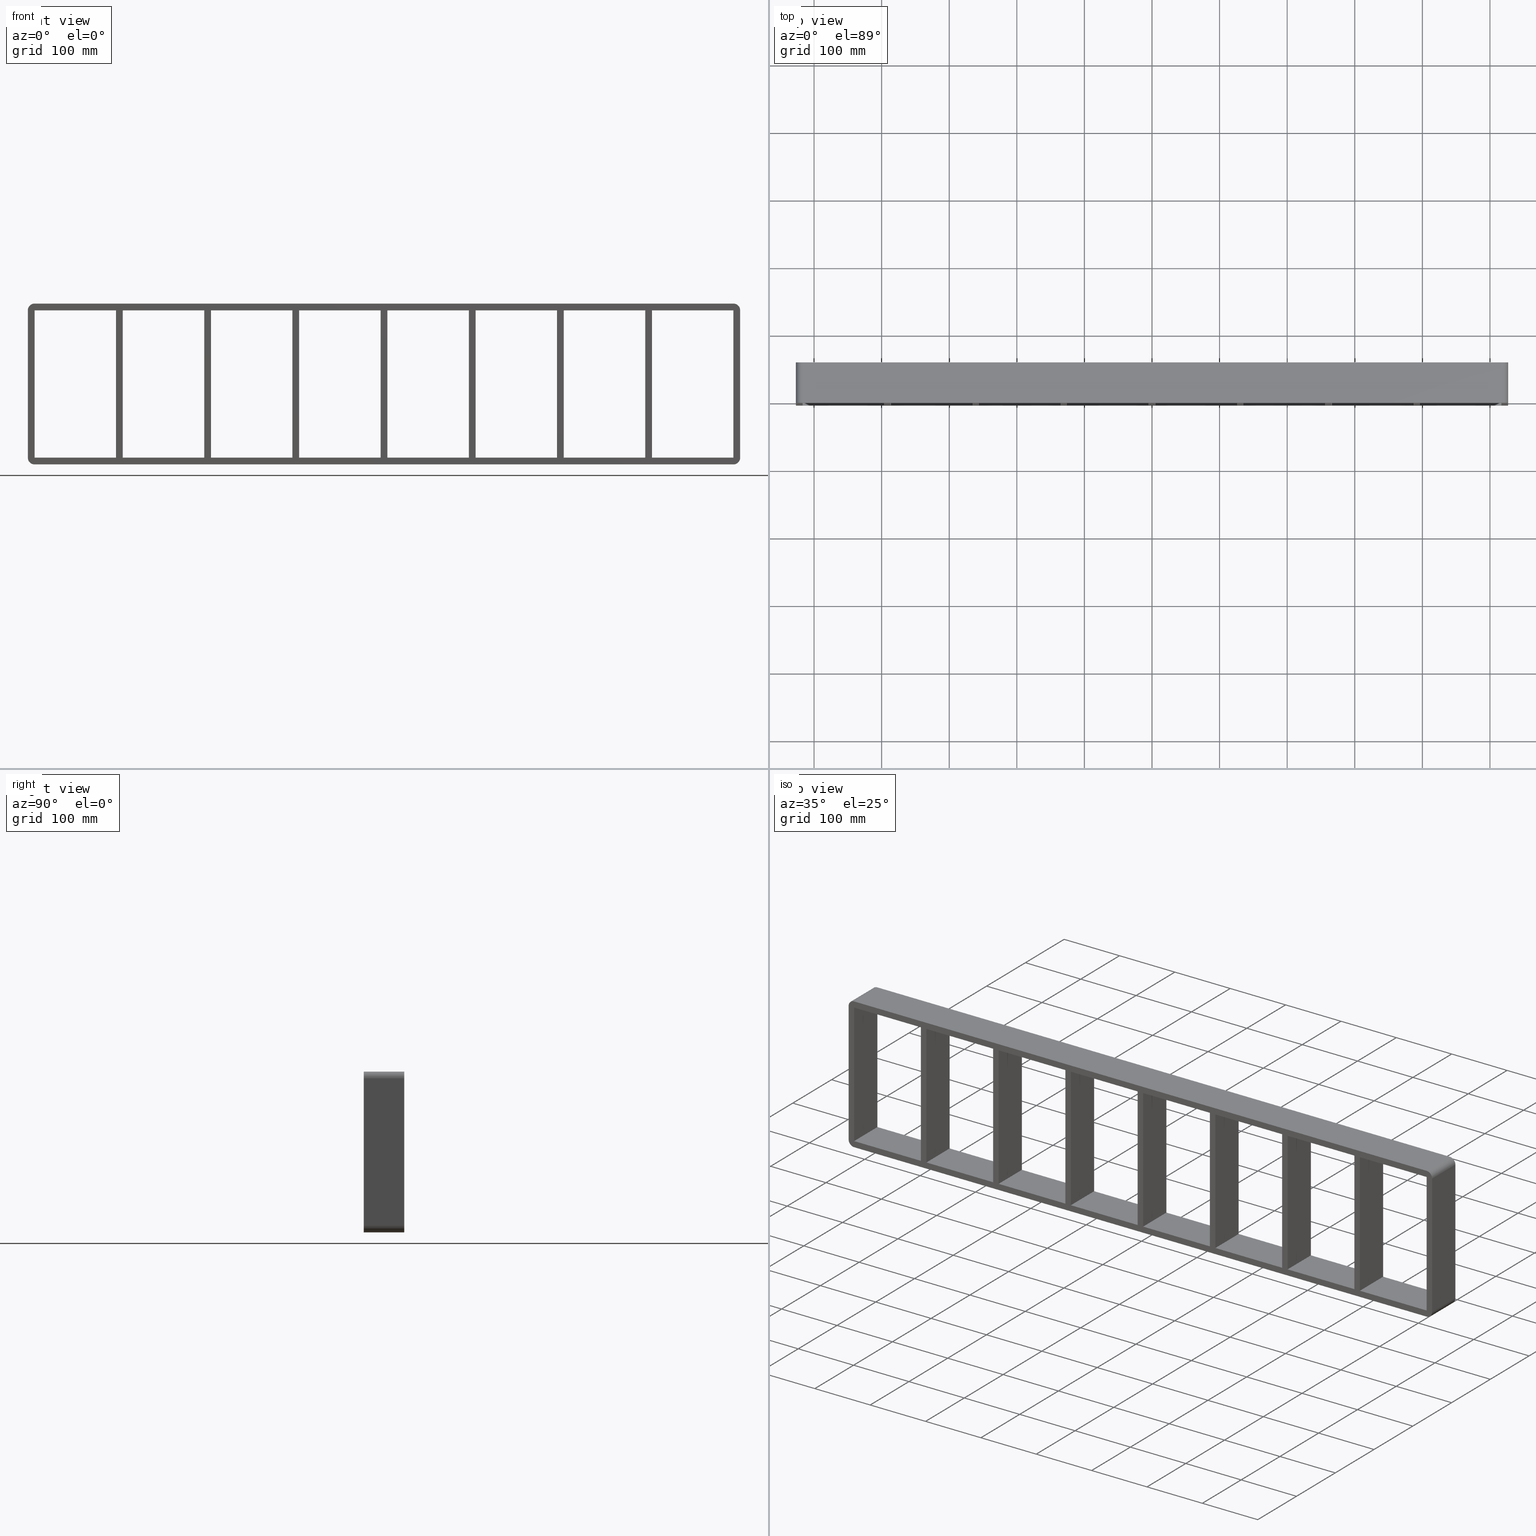
[diagram: canonical four-view strip — front | top / right | iso, engineering-drawing reading convention]
A machine part, canonical four-view strip (front | top / right | iso — engineering-drawing reading convention). The complete STEP part file that produces these views, byte-faithful:
ISO-10303-21;
HEADER;
/****************************************************************
 * Generated by software with PDElib inside                    *
 * PDElib Version v51a, created Wed 11/30/2011                  *
 * ITI Transcendata (http://www.transcendata.com/)              *
 ****************************************************************/
FILE_DESCRIPTION((''),'2;1');
FILE_NAME('C:\\RoxtecConfigurator\\CreatedFiles\\STEP\\S6X8.stp','2013-06-28T14:04:53',(''),(''),'Autodesk Inventor 2013','Autodesk Inventor 2013','');
FILE_SCHEMA(('AUTOMOTIVE_DESIGN { 1 0 10303 214 1 1 1 1 }'));
ENDSEC;
DATA;
#5=APPLICATION_CONTEXT('automotive design');
#6=APPLICATION_PROTOCOL_DEFINITION('International Standard','automotive_design',2001,#5);
#7=PRODUCT_CONTEXT('',#5,'mechanical');
#8=PRODUCT('roxtec S_SF_G','roxtec S_SF_G',$,(#7));
#9=PRODUCT_RELATED_PRODUCT_CATEGORY('part',$,(#8));
#10=PRODUCT_DEFINITION_FORMATION('',$,#8);
#11=PRODUCT_DEFINITION_CONTEXT('part definition',#5,'design');
#12=PRODUCT_DEFINITION('',$,#10,#11);
#18=(NAMED_UNIT(*)PLANE_ANGLE_UNIT()SI_UNIT($,.RADIAN.));
#19=DIMENSIONAL_EXPONENTS(0.0,0.0,0.0,0.0,0.0,0.0,0.0);
#20=PLANE_ANGLE_MEASURE_WITH_UNIT(PLANE_ANGLE_MEASURE(0.0174532925),#18);
#24=(CONVERSION_BASED_UNIT('DEGREE',#20)NAMED_UNIT(#19)PLANE_ANGLE_UNIT());
#28=(NAMED_UNIT(*)SI_UNIT($,.STERADIAN.)SOLID_ANGLE_UNIT());
#32=(LENGTH_UNIT()NAMED_UNIT(*)SI_UNIT(.MILLI.,.METRE.));
#34=UNCERTAINTY_MEASURE_WITH_UNIT(LENGTH_MEASURE(0.01),#32,'DISTANCE_ACCURACY_VALUE','');
#36=(GEOMETRIC_REPRESENTATION_CONTEXT(3)GLOBAL_UNCERTAINTY_ASSIGNED_CONTEXT((#34))GLOBAL_UNIT_ASSIGNED_CONTEXT((#24,#28,#32))REPRESENTATION_CONTEXT('None','None'));
#37=AXIS2_PLACEMENT_3D('',#38,#39,#40);
#38=CARTESIAN_POINT('',(0.0,0.0,0.0));
#39=DIRECTION('',(0.0,0.0,1.0));
#40=DIRECTION('',(1.0,0.0,0.0));
#41=SHAPE_REPRESENTATION('',(#37),#36);
#42=PRODUCT_DEFINITION_SHAPE('','',#12);
#43=SHAPE_DEFINITION_REPRESENTATION(#42,#41);
#49=(NAMED_UNIT(*)PLANE_ANGLE_UNIT()SI_UNIT($,.RADIAN.));
#50=DIMENSIONAL_EXPONENTS(0.0,0.0,0.0,0.0,0.0,0.0,0.0);
#51=PLANE_ANGLE_MEASURE_WITH_UNIT(PLANE_ANGLE_MEASURE(0.0174532925),#49);
#55=(CONVERSION_BASED_UNIT('DEGREE',#51)NAMED_UNIT(#50)PLANE_ANGLE_UNIT());
#59=(NAMED_UNIT(*)SI_UNIT($,.STERADIAN.)SOLID_ANGLE_UNIT());
#63=(LENGTH_UNIT()NAMED_UNIT(*)SI_UNIT(.MILLI.,.METRE.));
#65=UNCERTAINTY_MEASURE_WITH_UNIT(LENGTH_MEASURE(0.000001),#63,'DISTANCE_ACCURACY_VALUE','');
#67=(GEOMETRIC_REPRESENTATION_CONTEXT(3)GLOBAL_UNCERTAINTY_ASSIGNED_CONTEXT((#65))GLOBAL_UNIT_ASSIGNED_CONTEXT((#55,#59,#63))REPRESENTATION_CONTEXT('','3D'));
#68=CARTESIAN_POINT('',(386.49999999999892,-3.0,-109.0));
#69=DIRECTION('',(-1.0,0.0,0.0));
#70=DIRECTION('',(0.0,0.0,1.0));
#71=AXIS2_PLACEMENT_3D('',#68,#69,#70);
#72=PLANE('',#71);
#73=CARTESIAN_POINT('',(386.49999999999892,-3.0,-109.0));
#74=VERTEX_POINT('',#73);
#75=CARTESIAN_POINT('',(386.49999999999892,-3.0,108.99999999999997));
#76=VERTEX_POINT('',#75);
#77=CARTESIAN_POINT('',(386.49999999999892,-3.0,-109.0));
#78=DIRECTION('',(0.0,0.0,1.0));
#79=VECTOR('',#78,217.99999999999997);
#80=LINE('',#77,#79);
#81=EDGE_CURVE('',#74,#76,#80,.T.);
#82=ORIENTED_EDGE('',*,*,#81,.T.);
#83=CARTESIAN_POINT('',(386.49999999999892,57.0,108.99999999999997));
#84=VERTEX_POINT('',#83);
#85=CARTESIAN_POINT('',(386.49999999999892,57.000000000000007,108.99999999999999));
#86=DIRECTION('',(0.0,-1.0,0.0));
#87=VECTOR('',#86,60.000000000000007);
#88=LINE('',#85,#87);
#89=EDGE_CURVE('',#84,#76,#88,.T.);
#90=ORIENTED_EDGE('',*,*,#89,.F.);
#91=CARTESIAN_POINT('',(386.49999999999892,57.0,-109.0));
#92=VERTEX_POINT('',#91);
#93=CARTESIAN_POINT('',(386.49999999999892,57.0,-109.0));
#94=DIRECTION('',(0.0,0.0,1.0));
#95=VECTOR('',#94,217.99999999999997);
#96=LINE('',#93,#95);
#97=EDGE_CURVE('',#92,#84,#96,.T.);
#98=ORIENTED_EDGE('',*,*,#97,.F.);
#99=CARTESIAN_POINT('',(386.49999999999892,-3.0,-109.0));
#100=DIRECTION('',(0.0,1.0,0.0));
#101=VECTOR('',#100,60.000000000000007);
#102=LINE('',#99,#101);
#103=EDGE_CURVE('',#74,#92,#102,.T.);
#104=ORIENTED_EDGE('',*,*,#103,.F.);
#105=EDGE_LOOP('',(#82,#90,#98,#104));
#106=FACE_OUTER_BOUND('',#105,.T.);
#107=ADVANCED_FACE('',(#106),#72,.T.);
#108=CARTESIAN_POINT('',(396.50000000000375,-3.0,108.99999999999997));
#109=DIRECTION('',(1.0,0.0,0.0));
#110=DIRECTION('',(0.0,0.0,-1.0));
#111=AXIS2_PLACEMENT_3D('',#108,#109,#110);
#112=PLANE('',#111);
#113=CARTESIAN_POINT('',(396.50000000000375,-3.0,108.99999999999997));
#114=VERTEX_POINT('',#113);
#115=CARTESIAN_POINT('',(396.50000000000375,-3.0,-108.99999999998421));
#116=VERTEX_POINT('',#115);
#117=CARTESIAN_POINT('',(396.50000000000375,-3.0,108.99999999999997));
#118=DIRECTION('',(0.0,0.0,-1.0));
#119=VECTOR('',#118,217.9999999999842);
#120=LINE('',#117,#119);
#121=EDGE_CURVE('',#114,#116,#120,.T.);
#122=ORIENTED_EDGE('',*,*,#121,.T.);
#123=CARTESIAN_POINT('',(396.50000000000375,57.0,-108.99999999998423));
#124=VERTEX_POINT('',#123);
#125=CARTESIAN_POINT('',(396.50000000000375,57.000000000000007,-109.0));
#126=DIRECTION('',(0.0,-1.0,0.0));
#127=VECTOR('',#126,60.000000000000007);
#128=LINE('',#125,#127);
#129=EDGE_CURVE('',#124,#116,#128,.T.);
#130=ORIENTED_EDGE('',*,*,#129,.F.);
#131=CARTESIAN_POINT('',(396.50000000000375,57.0,108.99999999999997));
#132=VERTEX_POINT('',#131);
#133=CARTESIAN_POINT('',(396.50000000000375,57.0,108.99999999999997));
#134=DIRECTION('',(0.0,0.0,-1.0));
#135=VECTOR('',#134,217.9999999999842);
#136=LINE('',#133,#135);
#137=EDGE_CURVE('',#132,#124,#136,.T.);
#138=ORIENTED_EDGE('',*,*,#137,.F.);
#139=CARTESIAN_POINT('',(396.50000000000375,-3.0,108.99999999999999));
#140=DIRECTION('',(0.0,1.0,0.0));
#141=VECTOR('',#140,60.000000000000007);
#142=LINE('',#139,#141);
#143=EDGE_CURVE('',#114,#132,#142,.T.);
#144=ORIENTED_EDGE('',*,*,#143,.F.);
#145=EDGE_LOOP('',(#122,#130,#138,#144));
#146=FACE_OUTER_BOUND('',#145,.T.);
#147=ADVANCED_FACE('',(#146),#112,.T.);
#148=CARTESIAN_POINT('',(255.99999999999878,-3.0,-109.0));
#149=DIRECTION('',(-1.0,0.0,0.0));
#150=DIRECTION('',(0.0,0.0,1.0));
#151=AXIS2_PLACEMENT_3D('',#148,#149,#150);
#152=PLANE('',#151);
#153=CARTESIAN_POINT('',(255.99999999999878,-3.0,-109.0));
#154=VERTEX_POINT('',#153);
#155=CARTESIAN_POINT('',(255.99999999999878,-3.0,108.99999999999997));
#156=VERTEX_POINT('',#155);
#157=CARTESIAN_POINT('',(255.99999999999878,-3.0,-109.0));
#158=DIRECTION('',(0.0,0.0,1.0));
#159=VECTOR('',#158,217.99999999999997);
#160=LINE('',#157,#159);
#161=EDGE_CURVE('',#154,#156,#160,.T.);
#162=ORIENTED_EDGE('',*,*,#161,.T.);
#163=CARTESIAN_POINT('',(255.99999999999878,57.0,108.99999999999997));
#164=VERTEX_POINT('',#163);
#165=CARTESIAN_POINT('',(255.99999999999875,57.000000000000007,108.99999999999999));
#166=DIRECTION('',(0.0,-1.0,0.0));
#167=VECTOR('',#166,60.000000000000007);
#168=LINE('',#165,#167);
#169=EDGE_CURVE('',#164,#156,#168,.T.);
#170=ORIENTED_EDGE('',*,*,#169,.F.);
#171=CARTESIAN_POINT('',(255.99999999999878,57.0,-109.0));
#172=VERTEX_POINT('',#171);
#173=CARTESIAN_POINT('',(255.99999999999878,57.0,-109.0));
#174=DIRECTION('',(0.0,0.0,1.0));
#175=VECTOR('',#174,217.99999999999997);
#176=LINE('',#173,#175);
#177=EDGE_CURVE('',#172,#164,#176,.T.);
#178=ORIENTED_EDGE('',*,*,#177,.F.);
#179=CARTESIAN_POINT('',(255.99999999999875,-3.0,-109.0));
#180=DIRECTION('',(0.0,1.0,0.0));
#181=VECTOR('',#180,60.000000000000007);
#182=LINE('',#179,#181);
#183=EDGE_CURVE('',#154,#172,#182,.T.);
#184=ORIENTED_EDGE('',*,*,#183,.F.);
#185=EDGE_LOOP('',(#162,#170,#178,#184));
#186=FACE_OUTER_BOUND('',#185,.T.);
#187=ADVANCED_FACE('',(#186),#152,.T.);
#188=CARTESIAN_POINT('',(266.00000000000369,-3.0,108.99999999999997));
#189=DIRECTION('',(1.0,0.0,0.0));
#190=DIRECTION('',(0.0,0.0,-1.0));
#191=AXIS2_PLACEMENT_3D('',#188,#189,#190);
#192=PLANE('',#191);
#193=CARTESIAN_POINT('',(266.00000000000369,-3.0,108.99999999999997));
#194=VERTEX_POINT('',#193);
#195=CARTESIAN_POINT('',(266.00000000000369,-3.0,-108.99999999998421));
#196=VERTEX_POINT('',#195);
#197=CARTESIAN_POINT('',(266.00000000000369,-3.0,108.99999999999997));
#198=DIRECTION('',(0.0,0.0,-1.0));
#199=VECTOR('',#198,217.9999999999842);
#200=LINE('',#197,#199);
#201=EDGE_CURVE('',#194,#196,#200,.T.);
#202=ORIENTED_EDGE('',*,*,#201,.T.);
#203=CARTESIAN_POINT('',(266.00000000000369,57.0,-108.99999999998423));
#204=VERTEX_POINT('',#203);
#205=CARTESIAN_POINT('',(266.00000000000369,57.000000000000007,-109.0));
#206=DIRECTION('',(0.0,-1.0,0.0));
#207=VECTOR('',#206,60.000000000000007);
#208=LINE('',#205,#207);
#209=EDGE_CURVE('',#204,#196,#208,.T.);
#210=ORIENTED_EDGE('',*,*,#209,.F.);
#211=CARTESIAN_POINT('',(266.00000000000369,57.0,108.99999999999997));
#212=VERTEX_POINT('',#211);
#213=CARTESIAN_POINT('',(266.00000000000369,57.0,108.99999999999997));
#214=DIRECTION('',(0.0,0.0,-1.0));
#215=VECTOR('',#214,217.9999999999842);
#216=LINE('',#213,#215);
#217=EDGE_CURVE('',#212,#204,#216,.T.);
#218=ORIENTED_EDGE('',*,*,#217,.F.);
#219=CARTESIAN_POINT('',(266.00000000000369,-3.0,108.99999999999999));
#220=DIRECTION('',(0.0,1.0,0.0));
#221=VECTOR('',#220,60.000000000000007);
#222=LINE('',#219,#221);
#223=EDGE_CURVE('',#194,#212,#222,.T.);
#224=ORIENTED_EDGE('',*,*,#223,.F.);
#225=EDGE_LOOP('',(#202,#210,#218,#224));
#226=FACE_OUTER_BOUND('',#225,.T.);
#227=ADVANCED_FACE('',(#226),#192,.T.);
#228=CARTESIAN_POINT('',(125.49999999999881,-3.0,-109.0));
#229=DIRECTION('',(-1.0,0.0,0.0));
#230=DIRECTION('',(0.0,0.0,1.0));
#231=AXIS2_PLACEMENT_3D('',#228,#229,#230);
#232=PLANE('',#231);
#233=CARTESIAN_POINT('',(125.49999999999881,-3.0,-109.0));
#234=VERTEX_POINT('',#233);
#235=CARTESIAN_POINT('',(125.49999999999881,-3.0,108.99999999999997));
#236=VERTEX_POINT('',#235);
#237=CARTESIAN_POINT('',(125.49999999999881,-3.0,-109.0));
#238=DIRECTION('',(0.0,0.0,1.0));
#239=VECTOR('',#238,217.99999999999997);
#240=LINE('',#237,#239);
#241=EDGE_CURVE('',#234,#236,#240,.T.);
#242=ORIENTED_EDGE('',*,*,#241,.T.);
#243=CARTESIAN_POINT('',(125.49999999999881,57.0,108.99999999999997));
#244=VERTEX_POINT('',#243);
#245=CARTESIAN_POINT('',(125.49999999999876,57.000000000000007,108.99999999999999));
#246=DIRECTION('',(0.0,-1.0,0.0));
#247=VECTOR('',#246,60.000000000000007);
#248=LINE('',#245,#247);
#249=EDGE_CURVE('',#244,#236,#248,.T.);
#250=ORIENTED_EDGE('',*,*,#249,.F.);
#251=CARTESIAN_POINT('',(125.49999999999881,57.0,-109.0));
#252=VERTEX_POINT('',#251);
#253=CARTESIAN_POINT('',(125.49999999999881,57.0,-109.0));
#254=DIRECTION('',(0.0,0.0,1.0));
#255=VECTOR('',#254,217.99999999999997);
#256=LINE('',#253,#255);
#257=EDGE_CURVE('',#252,#244,#256,.T.);
#258=ORIENTED_EDGE('',*,*,#257,.F.);
#259=CARTESIAN_POINT('',(125.49999999999876,-3.0,-109.0));
#260=DIRECTION('',(0.0,1.0,0.0));
#261=VECTOR('',#260,60.000000000000007);
#262=LINE('',#259,#261);
#263=EDGE_CURVE('',#234,#252,#262,.T.);
#264=ORIENTED_EDGE('',*,*,#263,.F.);
#265=EDGE_LOOP('',(#242,#250,#258,#264));
#266=FACE_OUTER_BOUND('',#265,.T.);
#267=ADVANCED_FACE('',(#266),#232,.T.);
#268=CARTESIAN_POINT('',(135.50000000000369,-3.0,108.99999999999997));
#269=DIRECTION('',(1.0,0.0,0.0));
#270=DIRECTION('',(0.0,0.0,-1.0));
#271=AXIS2_PLACEMENT_3D('',#268,#269,#270);
#272=PLANE('',#271);
#273=CARTESIAN_POINT('',(135.50000000000369,-3.0,108.99999999999997));
#274=VERTEX_POINT('',#273);
#275=CARTESIAN_POINT('',(135.50000000000369,-3.0,-108.99999999998421));
#276=VERTEX_POINT('',#275);
#277=CARTESIAN_POINT('',(135.50000000000369,-3.0,108.99999999999997));
#278=DIRECTION('',(0.0,0.0,-1.0));
#279=VECTOR('',#278,217.9999999999842);
#280=LINE('',#277,#279);
#281=EDGE_CURVE('',#274,#276,#280,.T.);
#282=ORIENTED_EDGE('',*,*,#281,.T.);
#283=CARTESIAN_POINT('',(135.50000000000369,57.0,-108.99999999998423));
#284=VERTEX_POINT('',#283);
#285=CARTESIAN_POINT('',(135.50000000000375,57.000000000000007,-109.0));
#286=DIRECTION('',(0.0,-1.0,0.0));
#287=VECTOR('',#286,60.000000000000007);
#288=LINE('',#285,#287);
#289=EDGE_CURVE('',#284,#276,#288,.T.);
#290=ORIENTED_EDGE('',*,*,#289,.F.);
#291=CARTESIAN_POINT('',(135.50000000000369,57.0,108.99999999999997));
#292=VERTEX_POINT('',#291);
#293=CARTESIAN_POINT('',(135.50000000000369,57.0,108.99999999999997));
#294=DIRECTION('',(0.0,0.0,-1.0));
#295=VECTOR('',#294,217.9999999999842);
#296=LINE('',#293,#295);
#297=EDGE_CURVE('',#292,#284,#296,.T.);
#298=ORIENTED_EDGE('',*,*,#297,.F.);
#299=CARTESIAN_POINT('',(135.50000000000375,-3.0,108.99999999999999));
#300=DIRECTION('',(0.0,1.0,0.0));
#301=VECTOR('',#300,60.000000000000007);
#302=LINE('',#299,#301);
#303=EDGE_CURVE('',#274,#292,#302,.T.);
#304=ORIENTED_EDGE('',*,*,#303,.F.);
#305=EDGE_LOOP('',(#282,#290,#298,#304));
#306=FACE_OUTER_BOUND('',#305,.T.);
#307=ADVANCED_FACE('',(#306),#272,.T.);
#308=CARTESIAN_POINT('',(-5.000000000001208,-3.0,-109.0));
#309=DIRECTION('',(-1.0,0.0,0.0));
#310=DIRECTION('',(0.0,0.0,1.0));
#311=AXIS2_PLACEMENT_3D('',#308,#309,#310);
#312=PLANE('',#311);
#313=CARTESIAN_POINT('',(-5.000000000001208,-3.0,-109.0));
#314=VERTEX_POINT('',#313);
#315=CARTESIAN_POINT('',(-5.000000000001208,-3.0,108.99999999999997));
#316=VERTEX_POINT('',#315);
#317=CARTESIAN_POINT('',(-5.000000000001208,-3.0,-109.0));
#318=DIRECTION('',(0.0,0.0,1.0));
#319=VECTOR('',#318,217.99999999999997);
#320=LINE('',#317,#319);
#321=EDGE_CURVE('',#314,#316,#320,.T.);
#322=ORIENTED_EDGE('',*,*,#321,.T.);
#323=CARTESIAN_POINT('',(-5.000000000001208,57.0,108.99999999999997));
#324=VERTEX_POINT('',#323);
#325=CARTESIAN_POINT('',(-5.000000000001208,57.000000000000007,108.99999999999999));
#326=DIRECTION('',(0.0,-1.0,0.0));
#327=VECTOR('',#326,60.000000000000007);
#328=LINE('',#325,#327);
#329=EDGE_CURVE('',#324,#316,#328,.T.);
#330=ORIENTED_EDGE('',*,*,#329,.F.);
#331=CARTESIAN_POINT('',(-5.000000000001208,57.0,-109.0));
#332=VERTEX_POINT('',#331);
#333=CARTESIAN_POINT('',(-5.000000000001208,57.0,-109.0));
#334=DIRECTION('',(0.0,0.0,1.0));
#335=VECTOR('',#334,217.99999999999997);
#336=LINE('',#333,#335);
#337=EDGE_CURVE('',#332,#324,#336,.T.);
#338=ORIENTED_EDGE('',*,*,#337,.F.);
#339=CARTESIAN_POINT('',(-5.000000000001208,-3.0,-109.0));
#340=DIRECTION('',(0.0,1.0,0.0));
#341=VECTOR('',#340,60.000000000000007);
#342=LINE('',#339,#341);
#343=EDGE_CURVE('',#314,#332,#342,.T.);
#344=ORIENTED_EDGE('',*,*,#343,.F.);
#345=EDGE_LOOP('',(#322,#330,#338,#344));
#346=FACE_OUTER_BOUND('',#345,.T.);
#347=ADVANCED_FACE('',(#346),#312,.T.);
#348=CARTESIAN_POINT('',(5.000000000003695,-3.0,108.99999999999997));
#349=DIRECTION('',(1.0,0.0,0.0));
#350=DIRECTION('',(0.0,0.0,-1.0));
#351=AXIS2_PLACEMENT_3D('',#348,#349,#350);
#352=PLANE('',#351);
#353=CARTESIAN_POINT('',(5.000000000003695,-3.0,108.99999999999997));
#354=VERTEX_POINT('',#353);
#355=CARTESIAN_POINT('',(5.000000000003695,-3.0,-108.99999999998421));
#356=VERTEX_POINT('',#355);
#357=CARTESIAN_POINT('',(5.000000000003695,-3.0,108.99999999999997));
#358=DIRECTION('',(0.0,0.0,-1.0));
#359=VECTOR('',#358,217.9999999999842);
#360=LINE('',#357,#359);
#361=EDGE_CURVE('',#354,#356,#360,.T.);
#362=ORIENTED_EDGE('',*,*,#361,.T.);
#363=CARTESIAN_POINT('',(5.000000000003695,57.0,-108.99999999998423));
#364=VERTEX_POINT('',#363);
#365=CARTESIAN_POINT('',(5.000000000003695,57.000000000000007,-109.0));
#366=DIRECTION('',(0.0,-1.0,0.0));
#367=VECTOR('',#366,60.000000000000007);
#368=LINE('',#365,#367);
#369=EDGE_CURVE('',#364,#356,#368,.T.);
#370=ORIENTED_EDGE('',*,*,#369,.F.);
#371=CARTESIAN_POINT('',(5.000000000003695,57.0,108.99999999999997));
#372=VERTEX_POINT('',#371);
#373=CARTESIAN_POINT('',(5.000000000003695,57.0,108.99999999999997));
#374=DIRECTION('',(0.0,0.0,-1.0));
#375=VECTOR('',#374,217.9999999999842);
#376=LINE('',#373,#375);
#377=EDGE_CURVE('',#372,#364,#376,.T.);
#378=ORIENTED_EDGE('',*,*,#377,.F.);
#379=CARTESIAN_POINT('',(5.000000000003695,-3.0,108.99999999999999));
#380=DIRECTION('',(0.0,1.0,0.0));
#381=VECTOR('',#380,60.000000000000007);
#382=LINE('',#379,#381);
#383=EDGE_CURVE('',#354,#372,#382,.T.);
#384=ORIENTED_EDGE('',*,*,#383,.F.);
#385=EDGE_LOOP('',(#362,#370,#378,#384));
#386=FACE_OUTER_BOUND('',#385,.T.);
#387=ADVANCED_FACE('',(#386),#352,.T.);
#388=CARTESIAN_POINT('',(-135.50000000000125,-3.0,-109.0));
#389=DIRECTION('',(-1.0,0.0,0.0));
#390=DIRECTION('',(0.0,0.0,1.0));
#391=AXIS2_PLACEMENT_3D('',#388,#389,#390);
#392=PLANE('',#391);
#393=CARTESIAN_POINT('',(-135.50000000000125,-3.0,-109.0));
#394=VERTEX_POINT('',#393);
#395=CARTESIAN_POINT('',(-135.50000000000125,-3.0,108.99999999999997));
#396=VERTEX_POINT('',#395);
#397=CARTESIAN_POINT('',(-135.50000000000125,-3.0,-109.0));
#398=DIRECTION('',(0.0,0.0,1.0));
#399=VECTOR('',#398,217.99999999999997);
#400=LINE('',#397,#399);
#401=EDGE_CURVE('',#394,#396,#400,.T.);
#402=ORIENTED_EDGE('',*,*,#401,.T.);
#403=CARTESIAN_POINT('',(-135.50000000000125,57.0,108.99999999999997));
#404=VERTEX_POINT('',#403);
#405=CARTESIAN_POINT('',(-135.50000000000122,57.000000000000007,108.99999999999999));
#406=DIRECTION('',(0.0,-1.0,0.0));
#407=VECTOR('',#406,60.000000000000007);
#408=LINE('',#405,#407);
#409=EDGE_CURVE('',#404,#396,#408,.T.);
#410=ORIENTED_EDGE('',*,*,#409,.F.);
#411=CARTESIAN_POINT('',(-135.50000000000125,57.0,-109.0));
#412=VERTEX_POINT('',#411);
#413=CARTESIAN_POINT('',(-135.50000000000125,57.0,-109.0));
#414=DIRECTION('',(0.0,0.0,1.0));
#415=VECTOR('',#414,217.99999999999997);
#416=LINE('',#413,#415);
#417=EDGE_CURVE('',#412,#404,#416,.T.);
#418=ORIENTED_EDGE('',*,*,#417,.F.);
#419=CARTESIAN_POINT('',(-135.50000000000122,-3.0,-109.0));
#420=DIRECTION('',(0.0,1.0,0.0));
#421=VECTOR('',#420,60.000000000000007);
#422=LINE('',#419,#421);
#423=EDGE_CURVE('',#394,#412,#422,.T.);
#424=ORIENTED_EDGE('',*,*,#423,.F.);
#425=EDGE_LOOP('',(#402,#410,#418,#424));
#426=FACE_OUTER_BOUND('',#425,.T.);
#427=ADVANCED_FACE('',(#426),#392,.T.);
#428=CARTESIAN_POINT('',(-125.49999999999635,-3.0,108.99999999999997));
#429=DIRECTION('',(1.0,0.0,0.0));
#430=DIRECTION('',(0.0,0.0,-1.0));
#431=AXIS2_PLACEMENT_3D('',#428,#429,#430);
#432=PLANE('',#431);
#433=CARTESIAN_POINT('',(-125.49999999999635,-3.0,108.99999999999997));
#434=VERTEX_POINT('',#433);
#435=CARTESIAN_POINT('',(-125.49999999999635,-3.0,-108.99999999998421));
#436=VERTEX_POINT('',#435);
#437=CARTESIAN_POINT('',(-125.49999999999635,-3.0,108.99999999999997));
#438=DIRECTION('',(0.0,0.0,-1.0));
#439=VECTOR('',#438,217.9999999999842);
#440=LINE('',#437,#439);
#441=EDGE_CURVE('',#434,#436,#440,.T.);
#442=ORIENTED_EDGE('',*,*,#441,.T.);
#443=CARTESIAN_POINT('',(-125.49999999999635,57.0,-108.99999999998423));
#444=VERTEX_POINT('',#443);
#445=CARTESIAN_POINT('',(-125.49999999999635,57.000000000000007,-109.0));
#446=DIRECTION('',(0.0,-1.0,0.0));
#447=VECTOR('',#446,60.000000000000007);
#448=LINE('',#445,#447);
#449=EDGE_CURVE('',#444,#436,#448,.T.);
#450=ORIENTED_EDGE('',*,*,#449,.F.);
#451=CARTESIAN_POINT('',(-125.49999999999635,57.0,108.99999999999997));
#452=VERTEX_POINT('',#451);
#453=CARTESIAN_POINT('',(-125.49999999999635,57.0,108.99999999999997));
#454=DIRECTION('',(0.0,0.0,-1.0));
#455=VECTOR('',#454,217.9999999999842);
#456=LINE('',#453,#455);
#457=EDGE_CURVE('',#452,#444,#456,.T.);
#458=ORIENTED_EDGE('',*,*,#457,.F.);
#459=CARTESIAN_POINT('',(-125.49999999999635,-3.0,108.99999999999999));
#460=DIRECTION('',(0.0,1.0,0.0));
#461=VECTOR('',#460,60.000000000000007);
#462=LINE('',#459,#461);
#463=EDGE_CURVE('',#434,#452,#462,.T.);
#464=ORIENTED_EDGE('',*,*,#463,.F.);
#465=EDGE_LOOP('',(#442,#450,#458,#464));
#466=FACE_OUTER_BOUND('',#465,.T.);
#467=ADVANCED_FACE('',(#466),#432,.T.);
#468=CARTESIAN_POINT('',(-266.00000000000125,-3.0,-109.0));
#469=DIRECTION('',(-1.0,0.0,0.0));
#470=DIRECTION('',(0.0,0.0,1.0));
#471=AXIS2_PLACEMENT_3D('',#468,#469,#470);
#472=PLANE('',#471);
#473=CARTESIAN_POINT('',(-266.00000000000125,-3.0,-109.0));
#474=VERTEX_POINT('',#473);
#475=CARTESIAN_POINT('',(-266.00000000000125,-3.0,108.99999999999997));
#476=VERTEX_POINT('',#475);
#477=CARTESIAN_POINT('',(-266.00000000000125,-3.0,-109.0));
#478=DIRECTION('',(0.0,0.0,1.0));
#479=VECTOR('',#478,217.99999999999997);
#480=LINE('',#477,#479);
#481=EDGE_CURVE('',#474,#476,#480,.T.);
#482=ORIENTED_EDGE('',*,*,#481,.T.);
#483=CARTESIAN_POINT('',(-266.00000000000125,57.0,108.99999999999997));
#484=VERTEX_POINT('',#483);
#485=CARTESIAN_POINT('',(-266.00000000000131,57.000000000000007,108.99999999999999));
#486=DIRECTION('',(0.0,-1.0,0.0));
#487=VECTOR('',#486,60.000000000000007);
#488=LINE('',#485,#487);
#489=EDGE_CURVE('',#484,#476,#488,.T.);
#490=ORIENTED_EDGE('',*,*,#489,.F.);
#491=CARTESIAN_POINT('',(-266.00000000000125,57.0,-109.0));
#492=VERTEX_POINT('',#491);
#493=CARTESIAN_POINT('',(-266.00000000000125,57.0,-109.0));
#494=DIRECTION('',(0.0,0.0,1.0));
#495=VECTOR('',#494,217.99999999999997);
#496=LINE('',#493,#495);
#497=EDGE_CURVE('',#492,#484,#496,.T.);
#498=ORIENTED_EDGE('',*,*,#497,.F.);
#499=CARTESIAN_POINT('',(-266.00000000000131,-3.0,-109.0));
#500=DIRECTION('',(0.0,1.0,0.0));
#501=VECTOR('',#500,60.000000000000007);
#502=LINE('',#499,#501);
#503=EDGE_CURVE('',#474,#492,#502,.T.);
#504=ORIENTED_EDGE('',*,*,#503,.F.);
#505=EDGE_LOOP('',(#482,#490,#498,#504));
#506=FACE_OUTER_BOUND('',#505,.T.);
#507=ADVANCED_FACE('',(#506),#472,.T.);
#508=CARTESIAN_POINT('',(-255.99999999999636,-3.0,108.99999999999997));
#509=DIRECTION('',(1.0,0.0,0.0));
#510=DIRECTION('',(0.0,0.0,-1.0));
#511=AXIS2_PLACEMENT_3D('',#508,#509,#510);
#512=PLANE('',#511);
#513=CARTESIAN_POINT('',(-255.99999999999636,-3.0,108.99999999999997));
#514=VERTEX_POINT('',#513);
#515=CARTESIAN_POINT('',(-255.99999999999636,-3.0,-108.99999999998421));
#516=VERTEX_POINT('',#515);
#517=CARTESIAN_POINT('',(-255.99999999999636,-3.0,108.99999999999997));
#518=DIRECTION('',(0.0,0.0,-1.0));
#519=VECTOR('',#518,217.9999999999842);
#520=LINE('',#517,#519);
#521=EDGE_CURVE('',#514,#516,#520,.T.);
#522=ORIENTED_EDGE('',*,*,#521,.T.);
#523=CARTESIAN_POINT('',(-255.99999999999636,57.0,-108.99999999998423));
#524=VERTEX_POINT('',#523);
#525=CARTESIAN_POINT('',(-255.99999999999631,57.000000000000007,-109.0));
#526=DIRECTION('',(0.0,-1.0,0.0));
#527=VECTOR('',#526,60.000000000000007);
#528=LINE('',#525,#527);
#529=EDGE_CURVE('',#524,#516,#528,.T.);
#530=ORIENTED_EDGE('',*,*,#529,.F.);
#531=CARTESIAN_POINT('',(-255.99999999999636,57.0,108.99999999999997));
#532=VERTEX_POINT('',#531);
#533=CARTESIAN_POINT('',(-255.99999999999636,57.0,108.99999999999997));
#534=DIRECTION('',(0.0,0.0,-1.0));
#535=VECTOR('',#534,217.9999999999842);
#536=LINE('',#533,#535);
#537=EDGE_CURVE('',#532,#524,#536,.T.);
#538=ORIENTED_EDGE('',*,*,#537,.F.);
#539=CARTESIAN_POINT('',(-255.99999999999631,-3.0,108.99999999999999));
#540=DIRECTION('',(0.0,1.0,0.0));
#541=VECTOR('',#540,60.000000000000007);
#542=LINE('',#539,#541);
#543=EDGE_CURVE('',#514,#532,#542,.T.);
#544=ORIENTED_EDGE('',*,*,#543,.F.);
#545=EDGE_LOOP('',(#522,#530,#538,#544));
#546=FACE_OUTER_BOUND('',#545,.T.);
#547=ADVANCED_FACE('',(#546),#512,.T.);
#548=CARTESIAN_POINT('',(517.0,0.0,-109.0));
#549=DIRECTION('',(0.0,0.0,-1.0));
#550=DIRECTION('',(-1.0,0.0,0.0));
#551=AXIS2_PLACEMENT_3D('',#548,#549,#550);
#552=PLANE('',#551);
#553=ORIENTED_EDGE('',*,*,#503,.T.);
#554=CARTESIAN_POINT('',(-386.49999999999636,57.0,-108.99999999998423));
#555=VERTEX_POINT('',#554);
#556=CARTESIAN_POINT('',(-386.49999999999636,57.0,-109.0));
#557=DIRECTION('',(1.0,0.0,0.0));
#558=VECTOR('',#557,120.499999999995);
#559=LINE('',#556,#558);
#560=EDGE_CURVE('',#555,#492,#559,.T.);
#561=ORIENTED_EDGE('',*,*,#560,.F.);
#562=CARTESIAN_POINT('',(-386.49999999999636,-3.0,-108.99999999998421));
#563=VERTEX_POINT('',#562);
#564=CARTESIAN_POINT('',(-386.49999999999636,57.000000000000007,-109.0));
#565=DIRECTION('',(0.0,-1.0,0.0));
#566=VECTOR('',#565,60.000000000000007);
#567=LINE('',#564,#566);
#568=EDGE_CURVE('',#555,#563,#567,.T.);
#569=ORIENTED_EDGE('',*,*,#568,.T.);
#570=CARTESIAN_POINT('',(-266.00000000000136,-3.0,-109.0));
#571=DIRECTION('',(-1.0,0.0,0.0));
#572=VECTOR('',#571,120.499999999995);
#573=LINE('',#570,#572);
#574=EDGE_CURVE('',#474,#563,#573,.T.);
#575=ORIENTED_EDGE('',*,*,#574,.F.);
#576=EDGE_LOOP('',(#553,#561,#569,#575));
#577=FACE_OUTER_BOUND('',#576,.T.);
#578=ADVANCED_FACE('',(#577),#552,.F.);
#579=CARTESIAN_POINT('',(517.0,0.0,-109.0));
#580=DIRECTION('',(0.0,0.0,-1.0));
#581=DIRECTION('',(-1.0,0.0,0.0));
#582=AXIS2_PLACEMENT_3D('',#579,#580,#581);
#583=PLANE('',#582);
#584=ORIENTED_EDGE('',*,*,#423,.T.);
#585=CARTESIAN_POINT('',(-255.99999999999636,57.0,-109.0));
#586=DIRECTION('',(1.0,0.0,0.0));
#587=VECTOR('',#586,120.49999999999511);
#588=LINE('',#585,#587);
#589=EDGE_CURVE('',#524,#412,#588,.T.);
#590=ORIENTED_EDGE('',*,*,#589,.F.);
#591=ORIENTED_EDGE('',*,*,#529,.T.);
#592=CARTESIAN_POINT('',(-135.50000000000125,-3.0,-109.0));
#593=DIRECTION('',(-1.0,0.0,0.0));
#594=VECTOR('',#593,120.49999999999511);
#595=LINE('',#592,#594);
#596=EDGE_CURVE('',#394,#516,#595,.T.);
#597=ORIENTED_EDGE('',*,*,#596,.F.);
#598=EDGE_LOOP('',(#584,#590,#591,#597));
#599=FACE_OUTER_BOUND('',#598,.T.);
#600=ADVANCED_FACE('',(#599),#583,.F.);
#601=CARTESIAN_POINT('',(517.0,0.0,-109.0));
#602=DIRECTION('',(0.0,0.0,-1.0));
#603=DIRECTION('',(-1.0,0.0,0.0));
#604=AXIS2_PLACEMENT_3D('',#601,#602,#603);
#605=PLANE('',#604);
#606=ORIENTED_EDGE('',*,*,#343,.T.);
#607=CARTESIAN_POINT('',(-125.49999999999636,57.0,-109.0));
#608=DIRECTION('',(1.0,0.0,0.0));
#609=VECTOR('',#608,120.49999999999511);
#610=LINE('',#607,#609);
#611=EDGE_CURVE('',#444,#332,#610,.T.);
#612=ORIENTED_EDGE('',*,*,#611,.F.);
#613=ORIENTED_EDGE('',*,*,#449,.T.);
#614=CARTESIAN_POINT('',(-5.000000000001251,-3.0,-109.0));
#615=DIRECTION('',(-1.0,0.0,0.0));
#616=VECTOR('',#615,120.49999999999511);
#617=LINE('',#614,#616);
#618=EDGE_CURVE('',#314,#436,#617,.T.);
#619=ORIENTED_EDGE('',*,*,#618,.F.);
#620=EDGE_LOOP('',(#606,#612,#613,#619));
#621=FACE_OUTER_BOUND('',#620,.T.);
#622=ADVANCED_FACE('',(#621),#605,.F.);
#623=CARTESIAN_POINT('',(517.0,0.0,-109.0));
#624=DIRECTION('',(0.0,0.0,-1.0));
#625=DIRECTION('',(-1.0,0.0,0.0));
#626=AXIS2_PLACEMENT_3D('',#623,#624,#625);
#627=PLANE('',#626);
#628=ORIENTED_EDGE('',*,*,#263,.T.);
#629=CARTESIAN_POINT('',(5.000000000003695,57.0,-109.0));
#630=DIRECTION('',(1.0,0.0,0.0));
#631=VECTOR('',#630,120.49999999999508);
#632=LINE('',#629,#631);
#633=EDGE_CURVE('',#364,#252,#632,.T.);
#634=ORIENTED_EDGE('',*,*,#633,.F.);
#635=ORIENTED_EDGE('',*,*,#369,.T.);
#636=CARTESIAN_POINT('',(125.49999999999878,-3.0,-109.0));
#637=DIRECTION('',(-1.0,0.0,0.0));
#638=VECTOR('',#637,120.49999999999508);
#639=LINE('',#636,#638);
#640=EDGE_CURVE('',#234,#356,#639,.T.);
#641=ORIENTED_EDGE('',*,*,#640,.F.);
#642=EDGE_LOOP('',(#628,#634,#635,#641));
#643=FACE_OUTER_BOUND('',#642,.T.);
#644=ADVANCED_FACE('',(#643),#627,.F.);
#645=CARTESIAN_POINT('',(517.0,0.0,-109.0));
#646=DIRECTION('',(0.0,0.0,-1.0));
#647=DIRECTION('',(-1.0,0.0,0.0));
#648=AXIS2_PLACEMENT_3D('',#645,#646,#647);
#649=PLANE('',#648);
#650=ORIENTED_EDGE('',*,*,#183,.T.);
#651=CARTESIAN_POINT('',(135.50000000000369,57.0,-109.0));
#652=DIRECTION('',(1.0,0.0,0.0));
#653=VECTOR('',#652,120.49999999999505);
#654=LINE('',#651,#653);
#655=EDGE_CURVE('',#284,#172,#654,.T.);
#656=ORIENTED_EDGE('',*,*,#655,.F.);
#657=ORIENTED_EDGE('',*,*,#289,.T.);
#658=CARTESIAN_POINT('',(255.99999999999875,-3.0,-109.0));
#659=DIRECTION('',(-1.0,0.0,0.0));
#660=VECTOR('',#659,120.49999999999505);
#661=LINE('',#658,#660);
#662=EDGE_CURVE('',#154,#276,#661,.T.);
#663=ORIENTED_EDGE('',*,*,#662,.F.);
#664=EDGE_LOOP('',(#650,#656,#657,#663));
#665=FACE_OUTER_BOUND('',#664,.T.);
#666=ADVANCED_FACE('',(#665),#649,.F.);
#667=CARTESIAN_POINT('',(517.0,0.0,-109.0));
#668=DIRECTION('',(0.0,0.0,-1.0));
#669=DIRECTION('',(-1.0,0.0,0.0));
#670=AXIS2_PLACEMENT_3D('',#667,#668,#669);
#671=PLANE('',#670);
#672=ORIENTED_EDGE('',*,*,#103,.T.);
#673=CARTESIAN_POINT('',(266.00000000000364,57.0,-109.0));
#674=DIRECTION('',(1.0,0.0,0.0));
#675=VECTOR('',#674,120.49999999999528);
#676=LINE('',#673,#675);
#677=EDGE_CURVE('',#204,#92,#676,.T.);
#678=ORIENTED_EDGE('',*,*,#677,.F.);
#679=ORIENTED_EDGE('',*,*,#209,.T.);
#680=CARTESIAN_POINT('',(386.49999999999892,-3.0,-109.0));
#681=DIRECTION('',(-1.0,0.0,0.0));
#682=VECTOR('',#681,120.49999999999528);
#683=LINE('',#680,#682);
#684=EDGE_CURVE('',#74,#196,#683,.T.);
#685=ORIENTED_EDGE('',*,*,#684,.F.);
#686=EDGE_LOOP('',(#672,#678,#679,#685));
#687=FACE_OUTER_BOUND('',#686,.T.);
#688=ADVANCED_FACE('',(#687),#671,.F.);
#689=CARTESIAN_POINT('',(517.0,0.0,-109.0));
#690=DIRECTION('',(0.0,0.0,-1.0));
#691=DIRECTION('',(-1.0,0.0,0.0));
#692=AXIS2_PLACEMENT_3D('',#689,#690,#691);
#693=PLANE('',#692);
#694=ORIENTED_EDGE('',*,*,#129,.T.);
#695=CARTESIAN_POINT('',(517.0,-3.0,-109.0));
#696=VERTEX_POINT('',#695);
#697=CARTESIAN_POINT('',(517.0,-3.0,-109.0));
#698=DIRECTION('',(-1.0,0.0,0.0));
#699=VECTOR('',#698,120.49999999999625);
#700=LINE('',#697,#699);
#701=EDGE_CURVE('',#696,#116,#700,.T.);
#702=ORIENTED_EDGE('',*,*,#701,.F.);
#703=CARTESIAN_POINT('',(517.0,57.0,-109.0));
#704=VERTEX_POINT('',#703);
#705=CARTESIAN_POINT('',(517.0,57.0,-109.0));
#706=DIRECTION('',(0.0,-1.0,0.0));
#707=VECTOR('',#706,60.0);
#708=LINE('',#705,#707);
#709=EDGE_CURVE('',#704,#696,#708,.T.);
#710=ORIENTED_EDGE('',*,*,#709,.F.);
#711=CARTESIAN_POINT('',(396.50000000000375,57.0,-109.0));
#712=DIRECTION('',(1.0,0.0,0.0));
#713=VECTOR('',#712,120.49999999999625);
#714=LINE('',#711,#713);
#715=EDGE_CURVE('',#124,#704,#714,.T.);
#716=ORIENTED_EDGE('',*,*,#715,.F.);
#717=EDGE_LOOP('',(#694,#702,#710,#716));
#718=FACE_OUTER_BOUND('',#717,.T.);
#719=ADVANCED_FACE('',(#718),#693,.F.);
#720=CARTESIAN_POINT('',(-517.0,0.0,108.99999999999999));
#721=DIRECTION('',(0.0,0.0,1.0));
#722=DIRECTION('',(1.0,0.0,0.0));
#723=AXIS2_PLACEMENT_3D('',#720,#721,#722);
#724=PLANE('',#723);
#725=ORIENTED_EDGE('',*,*,#489,.T.);
#726=CARTESIAN_POINT('',(-386.49999999999636,-3.0,108.99999999999997));
#727=VERTEX_POINT('',#726);
#728=CARTESIAN_POINT('',(-386.49999999999636,-3.0,108.99999999999999));
#729=DIRECTION('',(1.0,0.0,0.0));
#730=VECTOR('',#729,120.49999999999511);
#731=LINE('',#728,#730);
#732=EDGE_CURVE('',#727,#476,#731,.T.);
#733=ORIENTED_EDGE('',*,*,#732,.F.);
#734=CARTESIAN_POINT('',(-386.49999999999636,57.0,108.99999999999997));
#735=VERTEX_POINT('',#734);
#736=CARTESIAN_POINT('',(-386.49999999999636,-3.0,108.99999999999999));
#737=DIRECTION('',(0.0,1.0,0.0));
#738=VECTOR('',#737,60.000000000000007);
#739=LINE('',#736,#738);
#740=EDGE_CURVE('',#727,#735,#739,.T.);
#741=ORIENTED_EDGE('',*,*,#740,.T.);
#742=CARTESIAN_POINT('',(-266.00000000000125,57.0,108.99999999999999));
#743=DIRECTION('',(-1.0,0.0,0.0));
#744=VECTOR('',#743,120.49999999999511);
#745=LINE('',#742,#744);
#746=EDGE_CURVE('',#484,#735,#745,.T.);
#747=ORIENTED_EDGE('',*,*,#746,.F.);
#748=EDGE_LOOP('',(#725,#733,#741,#747));
#749=FACE_OUTER_BOUND('',#748,.T.);
#750=ADVANCED_FACE('',(#749),#724,.F.);
#751=CARTESIAN_POINT('',(-517.0,0.0,108.99999999999999));
#752=DIRECTION('',(0.0,0.0,1.0));
#753=DIRECTION('',(1.0,0.0,0.0));
#754=AXIS2_PLACEMENT_3D('',#751,#752,#753);
#755=PLANE('',#754);
#756=ORIENTED_EDGE('',*,*,#409,.T.);
#757=CARTESIAN_POINT('',(-255.99999999999636,-3.0,108.99999999999999));
#758=DIRECTION('',(1.0,0.0,0.0));
#759=VECTOR('',#758,120.49999999999511);
#760=LINE('',#757,#759);
#761=EDGE_CURVE('',#514,#396,#760,.T.);
#762=ORIENTED_EDGE('',*,*,#761,.F.);
#763=ORIENTED_EDGE('',*,*,#543,.T.);
#764=CARTESIAN_POINT('',(-135.50000000000125,57.0,108.99999999999999));
#765=DIRECTION('',(-1.0,0.0,0.0));
#766=VECTOR('',#765,120.49999999999511);
#767=LINE('',#764,#766);
#768=EDGE_CURVE('',#404,#532,#767,.T.);
#769=ORIENTED_EDGE('',*,*,#768,.F.);
#770=EDGE_LOOP('',(#756,#762,#763,#769));
#771=FACE_OUTER_BOUND('',#770,.T.);
#772=ADVANCED_FACE('',(#771),#755,.F.);
#773=CARTESIAN_POINT('',(-517.0,0.0,108.99999999999999));
#774=DIRECTION('',(0.0,0.0,1.0));
#775=DIRECTION('',(1.0,0.0,0.0));
#776=AXIS2_PLACEMENT_3D('',#773,#774,#775);
#777=PLANE('',#776);
#778=ORIENTED_EDGE('',*,*,#329,.T.);
#779=CARTESIAN_POINT('',(-125.49999999999636,-3.0,108.99999999999999));
#780=DIRECTION('',(1.0,0.0,0.0));
#781=VECTOR('',#780,120.49999999999517);
#782=LINE('',#779,#781);
#783=EDGE_CURVE('',#434,#316,#782,.T.);
#784=ORIENTED_EDGE('',*,*,#783,.F.);
#785=ORIENTED_EDGE('',*,*,#463,.T.);
#786=CARTESIAN_POINT('',(-5.000000000001194,57.0,108.99999999999999));
#787=DIRECTION('',(-1.0,0.0,0.0));
#788=VECTOR('',#787,120.49999999999517);
#789=LINE('',#786,#788);
#790=EDGE_CURVE('',#324,#452,#789,.T.);
#791=ORIENTED_EDGE('',*,*,#790,.F.);
#792=EDGE_LOOP('',(#778,#784,#785,#791));
#793=FACE_OUTER_BOUND('',#792,.T.);
#794=ADVANCED_FACE('',(#793),#777,.F.);
#795=CARTESIAN_POINT('',(-517.0,0.0,108.99999999999999));
#796=DIRECTION('',(0.0,0.0,1.0));
#797=DIRECTION('',(1.0,0.0,0.0));
#798=AXIS2_PLACEMENT_3D('',#795,#796,#797);
#799=PLANE('',#798);
#800=ORIENTED_EDGE('',*,*,#249,.T.);
#801=CARTESIAN_POINT('',(5.000000000003695,-3.0,108.99999999999999));
#802=DIRECTION('',(1.0,0.0,0.0));
#803=VECTOR('',#802,120.49999999999511);
#804=LINE('',#801,#803);
#805=EDGE_CURVE('',#354,#236,#804,.T.);
#806=ORIENTED_EDGE('',*,*,#805,.F.);
#807=ORIENTED_EDGE('',*,*,#383,.T.);
#808=CARTESIAN_POINT('',(125.49999999999881,57.0,108.99999999999999));
#809=DIRECTION('',(-1.0,0.0,0.0));
#810=VECTOR('',#809,120.49999999999511);
#811=LINE('',#808,#810);
#812=EDGE_CURVE('',#244,#372,#811,.T.);
#813=ORIENTED_EDGE('',*,*,#812,.F.);
#814=EDGE_LOOP('',(#800,#806,#807,#813));
#815=FACE_OUTER_BOUND('',#814,.T.);
#816=ADVANCED_FACE('',(#815),#799,.F.);
#817=CARTESIAN_POINT('',(-517.0,0.0,108.99999999999999));
#818=DIRECTION('',(0.0,0.0,1.0));
#819=DIRECTION('',(1.0,0.0,0.0));
#820=AXIS2_PLACEMENT_3D('',#817,#818,#819);
#821=PLANE('',#820);
#822=ORIENTED_EDGE('',*,*,#169,.T.);
#823=CARTESIAN_POINT('',(135.50000000000369,-3.0,108.99999999999999));
#824=DIRECTION('',(1.0,0.0,0.0));
#825=VECTOR('',#824,120.49999999999511);
#826=LINE('',#823,#825);
#827=EDGE_CURVE('',#274,#156,#826,.T.);
#828=ORIENTED_EDGE('',*,*,#827,.F.);
#829=ORIENTED_EDGE('',*,*,#303,.T.);
#830=CARTESIAN_POINT('',(255.99999999999881,57.0,108.99999999999999));
#831=DIRECTION('',(-1.0,0.0,0.0));
#832=VECTOR('',#831,120.49999999999511);
#833=LINE('',#830,#832);
#834=EDGE_CURVE('',#164,#292,#833,.T.);
#835=ORIENTED_EDGE('',*,*,#834,.F.);
#836=EDGE_LOOP('',(#822,#828,#829,#835));
#837=FACE_OUTER_BOUND('',#836,.T.);
#838=ADVANCED_FACE('',(#837),#821,.F.);
#839=CARTESIAN_POINT('',(-517.0,0.0,108.99999999999999));
#840=DIRECTION('',(0.0,0.0,1.0));
#841=DIRECTION('',(1.0,0.0,0.0));
#842=AXIS2_PLACEMENT_3D('',#839,#840,#841);
#843=PLANE('',#842);
#844=ORIENTED_EDGE('',*,*,#143,.T.);
#845=CARTESIAN_POINT('',(517.0,57.0,108.99999999999997));
#846=VERTEX_POINT('',#845);
#847=CARTESIAN_POINT('',(516.99999999999977,57.0,108.99999999999999));
#848=DIRECTION('',(-1.0,0.0,0.0));
#849=VECTOR('',#848,120.49999999999608);
#850=LINE('',#847,#849);
#851=EDGE_CURVE('',#846,#132,#850,.T.);
#852=ORIENTED_EDGE('',*,*,#851,.F.);
#853=CARTESIAN_POINT('',(517.0,-3.0,108.99999999999997));
#854=VERTEX_POINT('',#853);
#855=CARTESIAN_POINT('',(517.0,-3.0,108.99999999999999));
#856=DIRECTION('',(0.0,1.0,0.0));
#857=VECTOR('',#856,60.0);
#858=LINE('',#855,#857);
#859=EDGE_CURVE('',#854,#846,#858,.T.);
#860=ORIENTED_EDGE('',*,*,#859,.F.);
#861=CARTESIAN_POINT('',(396.50000000000369,-3.0,108.99999999999999));
#862=DIRECTION('',(1.0,0.0,0.0));
#863=VECTOR('',#862,120.49999999999608);
#864=LINE('',#861,#863);
#865=EDGE_CURVE('',#114,#854,#864,.T.);
#866=ORIENTED_EDGE('',*,*,#865,.F.);
#867=EDGE_LOOP('',(#844,#852,#860,#866));
#868=FACE_OUTER_BOUND('',#867,.T.);
#869=ADVANCED_FACE('',(#868),#843,.F.);
#870=CARTESIAN_POINT('',(-517.0,0.0,108.99999999999999));
#871=DIRECTION('',(0.0,0.0,1.0));
#872=DIRECTION('',(1.0,0.0,0.0));
#873=AXIS2_PLACEMENT_3D('',#870,#871,#872);
#874=PLANE('',#873);
#875=ORIENTED_EDGE('',*,*,#89,.T.);
#876=CARTESIAN_POINT('',(266.00000000000369,-3.0,108.99999999999999));
#877=DIRECTION('',(1.0,0.0,0.0));
#878=VECTOR('',#877,120.49999999999523);
#879=LINE('',#876,#878);
#880=EDGE_CURVE('',#194,#76,#879,.T.);
#881=ORIENTED_EDGE('',*,*,#880,.F.);
#882=ORIENTED_EDGE('',*,*,#223,.T.);
#883=CARTESIAN_POINT('',(386.49999999999892,57.0,108.99999999999999));
#884=DIRECTION('',(-1.0,0.0,0.0));
#885=VECTOR('',#884,120.49999999999523);
#886=LINE('',#883,#885);
#887=EDGE_CURVE('',#84,#212,#886,.T.);
#888=ORIENTED_EDGE('',*,*,#887,.F.);
#889=EDGE_LOOP('',(#875,#881,#882,#888));
#890=FACE_OUTER_BOUND('',#889,.T.);
#891=ADVANCED_FACE('',(#890),#874,.F.);
#892=CARTESIAN_POINT('',(-396.50000000000125,-3.0,-109.0));
#893=DIRECTION('',(-1.0,0.0,0.0));
#894=DIRECTION('',(0.0,0.0,1.0));
#895=AXIS2_PLACEMENT_3D('',#892,#893,#894);
#896=PLANE('',#895);
#897=CARTESIAN_POINT('',(-396.50000000000125,-3.0,-109.0));
#898=VERTEX_POINT('',#897);
#899=CARTESIAN_POINT('',(-396.50000000000125,-3.0,108.99999999999997));
#900=VERTEX_POINT('',#899);
#901=CARTESIAN_POINT('',(-396.50000000000125,-3.0,-109.0));
#902=DIRECTION('',(0.0,0.0,1.0));
#903=VECTOR('',#902,217.99999999999997);
#904=LINE('',#901,#903);
#905=EDGE_CURVE('',#898,#900,#904,.T.);
#906=ORIENTED_EDGE('',*,*,#905,.T.);
#907=CARTESIAN_POINT('',(-396.50000000000125,57.0,108.99999999999997));
#908=VERTEX_POINT('',#907);
#909=CARTESIAN_POINT('',(-396.50000000000125,57.000000000000007,108.99999999999999));
#910=DIRECTION('',(0.0,-1.0,0.0));
#911=VECTOR('',#910,60.000000000000007);
#912=LINE('',#909,#911);
#913=EDGE_CURVE('',#908,#900,#912,.T.);
#914=ORIENTED_EDGE('',*,*,#913,.F.);
#915=CARTESIAN_POINT('',(-396.50000000000125,57.0,-109.0));
#916=VERTEX_POINT('',#915);
#917=CARTESIAN_POINT('',(-396.50000000000125,57.0,-109.0));
#918=DIRECTION('',(0.0,0.0,1.0));
#919=VECTOR('',#918,217.99999999999997);
#920=LINE('',#917,#919);
#921=EDGE_CURVE('',#916,#908,#920,.T.);
#922=ORIENTED_EDGE('',*,*,#921,.F.);
#923=CARTESIAN_POINT('',(-396.50000000000125,-3.0,-109.0));
#924=DIRECTION('',(0.0,1.0,0.0));
#925=VECTOR('',#924,60.000000000000007);
#926=LINE('',#923,#925);
#927=EDGE_CURVE('',#898,#916,#926,.T.);
#928=ORIENTED_EDGE('',*,*,#927,.F.);
#929=EDGE_LOOP('',(#906,#914,#922,#928));
#930=FACE_OUTER_BOUND('',#929,.T.);
#931=ADVANCED_FACE('',(#930),#896,.T.);
#932=CARTESIAN_POINT('',(-386.49999999999636,-3.0,108.99999999999997));
#933=DIRECTION('',(1.0,0.0,0.0));
#934=DIRECTION('',(0.0,0.0,-1.0));
#935=AXIS2_PLACEMENT_3D('',#932,#933,#934);
#936=PLANE('',#935);
#937=CARTESIAN_POINT('',(-386.49999999999636,-3.0,108.99999999999997));
#938=DIRECTION('',(0.0,0.0,-1.0));
#939=VECTOR('',#938,217.9999999999842);
#940=LINE('',#937,#939);
#941=EDGE_CURVE('',#727,#563,#940,.T.);
#942=ORIENTED_EDGE('',*,*,#941,.T.);
#943=ORIENTED_EDGE('',*,*,#568,.F.);
#944=CARTESIAN_POINT('',(-386.49999999999636,57.0,108.99999999999997));
#945=DIRECTION('',(0.0,0.0,-1.0));
#946=VECTOR('',#945,217.9999999999842);
#947=LINE('',#944,#946);
#948=EDGE_CURVE('',#735,#555,#947,.T.);
#949=ORIENTED_EDGE('',*,*,#948,.F.);
#950=ORIENTED_EDGE('',*,*,#740,.F.);
#951=EDGE_LOOP('',(#942,#943,#949,#950));
#952=FACE_OUTER_BOUND('',#951,.T.);
#953=ADVANCED_FACE('',(#952),#936,.T.);
#954=CARTESIAN_POINT('',(517.0,0.0,-109.0));
#955=DIRECTION('',(0.0,0.0,-1.0));
#956=DIRECTION('',(-1.0,0.0,0.0));
#957=AXIS2_PLACEMENT_3D('',#954,#955,#956);
#958=PLANE('',#957);
#959=ORIENTED_EDGE('',*,*,#927,.T.);
#960=CARTESIAN_POINT('',(-517.0,57.0,-109.0));
#961=VERTEX_POINT('',#960);
#962=CARTESIAN_POINT('',(-517.0,57.0,-109.0));
#963=DIRECTION('',(1.0,0.0,0.0));
#964=VECTOR('',#963,120.49999999999875);
#965=LINE('',#962,#964);
#966=EDGE_CURVE('',#961,#916,#965,.T.);
#967=ORIENTED_EDGE('',*,*,#966,.F.);
#968=CARTESIAN_POINT('',(-517.0,-3.0,-109.0));
#969=VERTEX_POINT('',#968);
#970=CARTESIAN_POINT('',(-517.0,-3.0,-109.0));
#971=DIRECTION('',(0.0,1.0,0.0));
#972=VECTOR('',#971,60.0);
#973=LINE('',#970,#972);
#974=EDGE_CURVE('',#969,#961,#973,.T.);
#975=ORIENTED_EDGE('',*,*,#974,.F.);
#976=CARTESIAN_POINT('',(-396.50000000000125,-3.0,-109.0));
#977=DIRECTION('',(-1.0,0.0,0.0));
#978=VECTOR('',#977,120.49999999999875);
#979=LINE('',#976,#978);
#980=EDGE_CURVE('',#898,#969,#979,.T.);
#981=ORIENTED_EDGE('',*,*,#980,.F.);
#982=EDGE_LOOP('',(#959,#967,#975,#981));
#983=FACE_OUTER_BOUND('',#982,.T.);
#984=ADVANCED_FACE('',(#983),#958,.F.);
#985=CARTESIAN_POINT('',(-517.0,0.0,108.99999999999999));
#986=DIRECTION('',(0.0,0.0,1.0));
#987=DIRECTION('',(1.0,0.0,0.0));
#988=AXIS2_PLACEMENT_3D('',#985,#986,#987);
#989=PLANE('',#988);
#990=ORIENTED_EDGE('',*,*,#913,.T.);
#991=CARTESIAN_POINT('',(-517.0,-3.0,108.99999999999997));
#992=VERTEX_POINT('',#991);
#993=CARTESIAN_POINT('',(-517.0,-3.0,108.99999999999999));
#994=DIRECTION('',(1.0,0.0,0.0));
#995=VECTOR('',#994,120.49999999999875);
#996=LINE('',#993,#995);
#997=EDGE_CURVE('',#992,#900,#996,.T.);
#998=ORIENTED_EDGE('',*,*,#997,.F.);
#999=CARTESIAN_POINT('',(-517.0,57.0,108.99999999999997));
#1000=VERTEX_POINT('',#999);
#1001=CARTESIAN_POINT('',(-517.0,-3.0,108.99999999999999));
#1002=DIRECTION('',(0.0,1.0,0.0));
#1003=VECTOR('',#1002,60.0);
#1004=LINE('',#1001,#1003);
#1005=EDGE_CURVE('',#992,#1000,#1004,.T.);
#1006=ORIENTED_EDGE('',*,*,#1005,.T.);
#1007=CARTESIAN_POINT('',(-396.50000000000125,57.0,108.99999999999999));
#1008=DIRECTION('',(-1.0,0.0,0.0));
#1009=VECTOR('',#1008,120.49999999999875);
#1010=LINE('',#1007,#1009);
#1011=EDGE_CURVE('',#908,#1000,#1010,.T.);
#1012=ORIENTED_EDGE('',*,*,#1011,.F.);
#1013=EDGE_LOOP('',(#990,#998,#1006,#1012));
#1014=FACE_OUTER_BOUND('',#1013,.T.);
#1015=ADVANCED_FACE('',(#1014),#989,.F.);
#1016=CARTESIAN_POINT('',(517.00000000000011,0.0,-109.00000000000003));
#1017=DIRECTION('',(0.0,1.0,0.0));
#1018=DIRECTION('',(0.707106781186547,0.0,-0.707106781186547));
#1019=AXIS2_PLACEMENT_3D('',#1016,#1017,#1018);
#1020=CYLINDRICAL_SURFACE('',#1019,10.0);
#1021=CARTESIAN_POINT('',(517.00000000000011,57.0,-119.00000000000003));
#1022=VERTEX_POINT('',#1021);
#1023=CARTESIAN_POINT('',(527.00000000000011,57.0,-109.00000000000003));
#1024=VERTEX_POINT('',#1023);
#1025=CARTESIAN_POINT('',(517.00000000000011,57.0,-109.00000000000003));
#1026=DIRECTION('',(0.0,-1.0,0.0));
#1027=DIRECTION('',(0.707106781186547,0.0,-0.707106781186547));
#1028=AXIS2_PLACEMENT_3D('',#1025,#1026,#1027);
#1029=CIRCLE('',#1028,9.999999999999998);
#1030=EDGE_CURVE('',#1022,#1024,#1029,.T.);
#1031=ORIENTED_EDGE('',*,*,#1030,.T.);
#1032=CARTESIAN_POINT('',(527.00000000000011,-3.0,-109.00000000000003));
#1033=VERTEX_POINT('',#1032);
#1034=CARTESIAN_POINT('',(527.00000000000011,57.0,-109.00000000000003));
#1035=DIRECTION('',(0.0,-1.0,0.0));
#1036=VECTOR('',#1035,60.0);
#1037=LINE('',#1034,#1036);
#1038=EDGE_CURVE('',#1024,#1033,#1037,.T.);
#1039=ORIENTED_EDGE('',*,*,#1038,.T.);
#1040=CARTESIAN_POINT('',(517.00000000000011,-3.0,-119.00000000000003));
#1041=VERTEX_POINT('',#1040);
#1042=CARTESIAN_POINT('',(517.00000000000011,-3.0,-109.00000000000003));
#1043=DIRECTION('',(0.0,1.0,0.0));
#1044=DIRECTION('',(0.707106781186547,0.0,-0.707106781186547));
#1045=AXIS2_PLACEMENT_3D('',#1042,#1043,#1044);
#1046=CIRCLE('',#1045,9.999999999999998);
#1047=EDGE_CURVE('',#1033,#1041,#1046,.T.);
#1048=ORIENTED_EDGE('',*,*,#1047,.T.);
#1049=CARTESIAN_POINT('',(517.00000000000011,-3.0,-119.00000000000003));
#1050=DIRECTION('',(0.0,1.0,0.0));
#1051=VECTOR('',#1050,60.0);
#1052=LINE('',#1049,#1051);
#1053=EDGE_CURVE('',#1041,#1022,#1052,.T.);
#1054=ORIENTED_EDGE('',*,*,#1053,.T.);
#1055=EDGE_LOOP('',(#1031,#1039,#1048,#1054));
#1056=FACE_OUTER_BOUND('',#1055,.T.);
#1057=ADVANCED_FACE('',(#1056),#1020,.T.);
#1058=CARTESIAN_POINT('',(6.857947E-014,-3.0,-1.319894E-014));
#1059=DIRECTION('',(0.0,1.0,0.0));
#1060=DIRECTION('',(0.0,0.0,1.0));
#1061=AXIS2_PLACEMENT_3D('',#1058,#1059,#1060);
#1062=PLANE('',#1061);
#1063=ORIENTED_EDGE('',*,*,#1047,.F.);
#1064=CARTESIAN_POINT('',(527.00000000000011,-3.0,108.99999999999999));
#1065=VERTEX_POINT('',#1064);
#1066=CARTESIAN_POINT('',(527.00000000000011,-3.0,-109.00000000000001));
#1067=DIRECTION('',(0.0,0.0,1.0));
#1068=VECTOR('',#1067,218.0);
#1069=LINE('',#1066,#1068);
#1070=EDGE_CURVE('',#1033,#1065,#1069,.T.);
#1071=ORIENTED_EDGE('',*,*,#1070,.T.);
#1072=CARTESIAN_POINT('',(517.00000000000011,-3.0,118.99999999999999));
#1073=VERTEX_POINT('',#1072);
#1074=CARTESIAN_POINT('',(517.00000000000011,-3.0,108.99999999999999));
#1075=DIRECTION('',(0.0,1.0,0.0));
#1076=DIRECTION('',(0.707106781186547,0.0,0.707106781186547));
#1077=AXIS2_PLACEMENT_3D('',#1074,#1075,#1076);
#1078=CIRCLE('',#1077,9.999999999999998);
#1079=EDGE_CURVE('',#1073,#1065,#1078,.T.);
#1080=ORIENTED_EDGE('',*,*,#1079,.F.);
#1081=CARTESIAN_POINT('',(-517.0,-3.0,118.99999999999999));
#1082=VERTEX_POINT('',#1081);
#1083=CARTESIAN_POINT('',(517.0,-3.0,118.99999999999999));
#1084=DIRECTION('',(-1.0,0.0,0.0));
#1085=VECTOR('',#1084,1034.0);
#1086=LINE('',#1083,#1085);
#1087=EDGE_CURVE('',#1073,#1082,#1086,.T.);
#1088=ORIENTED_EDGE('',*,*,#1087,.T.);
#1089=CARTESIAN_POINT('',(-527.0,-3.0,108.99999999999999));
#1090=VERTEX_POINT('',#1089);
#1091=CARTESIAN_POINT('',(-517.0,-3.0,108.99999999999999));
#1092=DIRECTION('',(0.0,1.0,0.0));
#1093=DIRECTION('',(-0.707106781186547,0.0,0.707106781186547));
#1094=AXIS2_PLACEMENT_3D('',#1091,#1092,#1093);
#1095=CIRCLE('',#1094,9.999999999999998);
#1096=EDGE_CURVE('',#1090,#1082,#1095,.T.);
#1097=ORIENTED_EDGE('',*,*,#1096,.F.);
#1098=CARTESIAN_POINT('',(-527.0,-3.0,-109.00000000000003));
#1099=VERTEX_POINT('',#1098);
#1100=CARTESIAN_POINT('',(-527.0,-3.0,108.99999999999997));
#1101=DIRECTION('',(0.0,0.0,-1.0));
#1102=VECTOR('',#1101,218.0);
#1103=LINE('',#1100,#1102);
#1104=EDGE_CURVE('',#1090,#1099,#1103,.T.);
#1105=ORIENTED_EDGE('',*,*,#1104,.T.);
#1106=CARTESIAN_POINT('',(-517.0,-3.0,-119.00000000000003));
#1107=VERTEX_POINT('',#1106);
#1108=CARTESIAN_POINT('',(-517.0,-3.0,-109.00000000000003));
#1109=DIRECTION('',(0.0,1.0,0.0));
#1110=DIRECTION('',(-0.707106781186547,0.0,-0.707106781186547));
#1111=AXIS2_PLACEMENT_3D('',#1108,#1109,#1110);
#1112=CIRCLE('',#1111,9.999999999999998);
#1113=EDGE_CURVE('',#1107,#1099,#1112,.T.);
#1114=ORIENTED_EDGE('',*,*,#1113,.F.);
#1115=CARTESIAN_POINT('',(-516.99999999999989,-3.0,-119.00000000000003));
#1116=DIRECTION('',(1.0,0.0,0.0));
#1117=VECTOR('',#1116,1034.0);
#1118=LINE('',#1115,#1117);
#1119=EDGE_CURVE('',#1107,#1041,#1118,.T.);
#1120=ORIENTED_EDGE('',*,*,#1119,.T.);
#1121=EDGE_LOOP('',(#1063,#1071,#1080,#1088,#1097,#1105,#1114,#1120));
#1122=FACE_OUTER_BOUND('',#1121,.T.);
#1123=ORIENTED_EDGE('',*,*,#684,.T.);
#1124=ORIENTED_EDGE('',*,*,#201,.F.);
#1125=ORIENTED_EDGE('',*,*,#880,.T.);
#1126=ORIENTED_EDGE('',*,*,#81,.F.);
#1127=EDGE_LOOP('',(#1123,#1124,#1125,#1126));
#1128=FACE_BOUND('',#1127,.T.);
#1129=ORIENTED_EDGE('',*,*,#662,.T.);
#1130=ORIENTED_EDGE('',*,*,#281,.F.);
#1131=ORIENTED_EDGE('',*,*,#827,.T.);
#1132=ORIENTED_EDGE('',*,*,#161,.F.);
#1133=EDGE_LOOP('',(#1129,#1130,#1131,#1132));
#1134=FACE_BOUND('',#1133,.T.);
#1135=ORIENTED_EDGE('',*,*,#640,.T.);
#1136=ORIENTED_EDGE('',*,*,#361,.F.);
#1137=ORIENTED_EDGE('',*,*,#805,.T.);
#1138=ORIENTED_EDGE('',*,*,#241,.F.);
#1139=EDGE_LOOP('',(#1135,#1136,#1137,#1138));
#1140=FACE_BOUND('',#1139,.T.);
#1141=ORIENTED_EDGE('',*,*,#618,.T.);
#1142=ORIENTED_EDGE('',*,*,#441,.F.);
#1143=ORIENTED_EDGE('',*,*,#783,.T.);
#1144=ORIENTED_EDGE('',*,*,#321,.F.);
#1145=EDGE_LOOP('',(#1141,#1142,#1143,#1144));
#1146=FACE_BOUND('',#1145,.T.);
#1147=ORIENTED_EDGE('',*,*,#596,.T.);
#1148=ORIENTED_EDGE('',*,*,#521,.F.);
#1149=ORIENTED_EDGE('',*,*,#761,.T.);
#1150=ORIENTED_EDGE('',*,*,#401,.F.);
#1151=EDGE_LOOP('',(#1147,#1148,#1149,#1150));
#1152=FACE_BOUND('',#1151,.T.);
#1153=ORIENTED_EDGE('',*,*,#574,.T.);
#1154=ORIENTED_EDGE('',*,*,#941,.F.);
#1155=ORIENTED_EDGE('',*,*,#732,.T.);
#1156=ORIENTED_EDGE('',*,*,#481,.F.);
#1157=EDGE_LOOP('',(#1153,#1154,#1155,#1156));
#1158=FACE_BOUND('',#1157,.T.);
#1159=ORIENTED_EDGE('',*,*,#980,.T.);
#1160=CARTESIAN_POINT('',(-517.0,-3.0,-109.0));
#1161=DIRECTION('',(0.0,0.0,1.0));
#1162=VECTOR('',#1161,217.99999999999994);
#1163=LINE('',#1160,#1162);
#1164=EDGE_CURVE('',#969,#992,#1163,.T.);
#1165=ORIENTED_EDGE('',*,*,#1164,.T.);
#1166=ORIENTED_EDGE('',*,*,#997,.T.);
#1167=ORIENTED_EDGE('',*,*,#905,.F.);
#1168=EDGE_LOOP('',(#1159,#1165,#1166,#1167));
#1169=FACE_BOUND('',#1168,.T.);
#1170=ORIENTED_EDGE('',*,*,#121,.F.);
#1171=ORIENTED_EDGE('',*,*,#865,.T.);
#1172=CARTESIAN_POINT('',(517.0,-3.0,108.99999999999997));
#1173=DIRECTION('',(0.0,0.0,-1.0));
#1174=VECTOR('',#1173,217.99999999999994);
#1175=LINE('',#1172,#1174);
#1176=EDGE_CURVE('',#854,#696,#1175,.T.);
#1177=ORIENTED_EDGE('',*,*,#1176,.T.);
#1178=ORIENTED_EDGE('',*,*,#701,.T.);
#1179=EDGE_LOOP('',(#1170,#1171,#1177,#1178));
#1180=FACE_BOUND('',#1179,.T.);
#1181=ADVANCED_FACE('',(#1122,#1128,#1134,#1140,#1146,#1152,#1158,#1169,#1180),#1062,.F.);
#1182=CARTESIAN_POINT('',(527.00000000000011,0.0,118.99999999999999));
#1183=DIRECTION('',(1.0,0.0,0.0));
#1184=DIRECTION('',(0.0,0.0,-1.0));
#1185=AXIS2_PLACEMENT_3D('',#1182,#1183,#1184);
#1186=PLANE('',#1185);
#1187=ORIENTED_EDGE('',*,*,#1038,.F.);
#1188=CARTESIAN_POINT('',(527.00000000000011,57.0,108.99999999999999));
#1189=VERTEX_POINT('',#1188);
#1190=CARTESIAN_POINT('',(527.00000000000011,57.0,108.99999999999999));
#1191=DIRECTION('',(0.0,0.0,-1.0));
#1192=VECTOR('',#1191,218.0);
#1193=LINE('',#1190,#1192);
#1194=EDGE_CURVE('',#1189,#1024,#1193,.T.);
#1195=ORIENTED_EDGE('',*,*,#1194,.F.);
#1196=CARTESIAN_POINT('',(527.00000000000011,-3.0,108.99999999999999));
#1197=DIRECTION('',(0.0,1.0,0.0));
#1198=VECTOR('',#1197,60.0);
#1199=LINE('',#1196,#1198);
#1200=EDGE_CURVE('',#1065,#1189,#1199,.T.);
#1201=ORIENTED_EDGE('',*,*,#1200,.F.);
#1202=ORIENTED_EDGE('',*,*,#1070,.F.);
#1203=EDGE_LOOP('',(#1187,#1195,#1201,#1202));
#1204=FACE_OUTER_BOUND('',#1203,.T.);
#1205=ADVANCED_FACE('',(#1204),#1186,.T.);
#1206=CARTESIAN_POINT('',(517.00000000000011,0.0,108.99999999999999));
#1207=DIRECTION('',(0.0,-1.0,0.0));
#1208=DIRECTION('',(0.707106781186547,0.0,0.707106781186547));
#1209=AXIS2_PLACEMENT_3D('',#1206,#1207,#1208);
#1210=CYLINDRICAL_SURFACE('',#1209,10.0);
#1211=ORIENTED_EDGE('',*,*,#1079,.T.);
#1212=ORIENTED_EDGE('',*,*,#1200,.T.);
#1213=CARTESIAN_POINT('',(517.00000000000011,57.0,118.99999999999999));
#1214=VERTEX_POINT('',#1213);
#1215=CARTESIAN_POINT('',(517.00000000000011,57.0,108.99999999999999));
#1216=DIRECTION('',(0.0,-1.0,0.0));
#1217=DIRECTION('',(0.707106781186547,0.0,0.707106781186547));
#1218=AXIS2_PLACEMENT_3D('',#1215,#1216,#1217);
#1219=CIRCLE('',#1218,9.999999999999998);
#1220=EDGE_CURVE('',#1189,#1214,#1219,.T.);
#1221=ORIENTED_EDGE('',*,*,#1220,.T.);
#1222=CARTESIAN_POINT('',(517.00000000000011,57.0,118.99999999999999));
#1223=DIRECTION('',(0.0,-1.0,0.0));
#1224=VECTOR('',#1223,60.0);
#1225=LINE('',#1222,#1224);
#1226=EDGE_CURVE('',#1214,#1073,#1225,.T.);
#1227=ORIENTED_EDGE('',*,*,#1226,.T.);
#1228=EDGE_LOOP('',(#1211,#1212,#1221,#1227));
#1229=FACE_OUTER_BOUND('',#1228,.T.);
#1230=ADVANCED_FACE('',(#1229),#1210,.T.);
#1231=CARTESIAN_POINT('',(-517.0,0.0,-109.00000000000003));
#1232=DIRECTION('',(0.0,1.0,0.0));
#1233=DIRECTION('',(-0.707106781186547,0.0,-0.707106781186547));
#1234=AXIS2_PLACEMENT_3D('',#1231,#1232,#1233);
#1235=CYLINDRICAL_SURFACE('',#1234,10.0);
#1236=CARTESIAN_POINT('',(-527.0,57.0,-109.00000000000003));
#1237=VERTEX_POINT('',#1236);
#1238=CARTESIAN_POINT('',(-517.0,57.0,-119.00000000000003));
#1239=VERTEX_POINT('',#1238);
#1240=CARTESIAN_POINT('',(-517.0,57.0,-109.00000000000003));
#1241=DIRECTION('',(0.0,-1.0,0.0));
#1242=DIRECTION('',(-0.707106781186547,0.0,-0.707106781186547));
#1243=AXIS2_PLACEMENT_3D('',#1240,#1241,#1242);
#1244=CIRCLE('',#1243,9.999999999999998);
#1245=EDGE_CURVE('',#1237,#1239,#1244,.T.);
#1246=ORIENTED_EDGE('',*,*,#1245,.T.);
#1247=CARTESIAN_POINT('',(-517.0,57.0,-119.00000000000003));
#1248=DIRECTION('',(0.0,-1.0,0.0));
#1249=VECTOR('',#1248,60.0);
#1250=LINE('',#1247,#1249);
#1251=EDGE_CURVE('',#1239,#1107,#1250,.T.);
#1252=ORIENTED_EDGE('',*,*,#1251,.T.);
#1253=ORIENTED_EDGE('',*,*,#1113,.T.);
#1254=CARTESIAN_POINT('',(-527.0,-3.0,-109.00000000000003));
#1255=DIRECTION('',(0.0,1.0,0.0));
#1256=VECTOR('',#1255,60.0);
#1257=LINE('',#1254,#1256);
#1258=EDGE_CURVE('',#1099,#1237,#1257,.T.);
#1259=ORIENTED_EDGE('',*,*,#1258,.T.);
#1260=EDGE_LOOP('',(#1246,#1252,#1253,#1259));
#1261=FACE_OUTER_BOUND('',#1260,.T.);
#1262=ADVANCED_FACE('',(#1261),#1235,.T.);
#1263=CARTESIAN_POINT('',(-527.0,0.0,-119.00000000000003));
#1264=DIRECTION('',(-1.0,0.0,0.0));
#1265=DIRECTION('',(0.0,0.0,1.0));
#1266=AXIS2_PLACEMENT_3D('',#1263,#1264,#1265);
#1267=PLANE('',#1266);
#1268=ORIENTED_EDGE('',*,*,#1258,.F.);
#1269=ORIENTED_EDGE('',*,*,#1104,.F.);
#1270=CARTESIAN_POINT('',(-527.0,57.0,108.99999999999999));
#1271=VERTEX_POINT('',#1270);
#1272=CARTESIAN_POINT('',(-527.0,57.0,108.99999999999999));
#1273=DIRECTION('',(0.0,-1.0,0.0));
#1274=VECTOR('',#1273,60.0);
#1275=LINE('',#1272,#1274);
#1276=EDGE_CURVE('',#1271,#1090,#1275,.T.);
#1277=ORIENTED_EDGE('',*,*,#1276,.F.);
#1278=CARTESIAN_POINT('',(-527.0,57.0,-109.00000000000003));
#1279=DIRECTION('',(0.0,0.0,1.0));
#1280=VECTOR('',#1279,218.0);
#1281=LINE('',#1278,#1280);
#1282=EDGE_CURVE('',#1237,#1271,#1281,.T.);
#1283=ORIENTED_EDGE('',*,*,#1282,.F.);
#1284=EDGE_LOOP('',(#1268,#1269,#1277,#1283));
#1285=FACE_OUTER_BOUND('',#1284,.T.);
#1286=ADVANCED_FACE('',(#1285),#1267,.T.);
#1287=CARTESIAN_POINT('',(-517.0,0.0,108.99999999999999));
#1288=DIRECTION('',(0.0,1.0,0.0));
#1289=DIRECTION('',(-0.707106781186547,0.0,0.707106781186547));
#1290=AXIS2_PLACEMENT_3D('',#1287,#1288,#1289);
#1291=CYLINDRICAL_SURFACE('',#1290,10.0);
#1292=CARTESIAN_POINT('',(-517.0,57.0,118.99999999999999));
#1293=VERTEX_POINT('',#1292);
#1294=CARTESIAN_POINT('',(-517.0,57.0,108.99999999999999));
#1295=DIRECTION('',(0.0,-1.0,0.0));
#1296=DIRECTION('',(-0.707106781186547,0.0,0.707106781186547));
#1297=AXIS2_PLACEMENT_3D('',#1294,#1295,#1296);
#1298=CIRCLE('',#1297,9.999999999999998);
#1299=EDGE_CURVE('',#1293,#1271,#1298,.T.);
#1300=ORIENTED_EDGE('',*,*,#1299,.T.);
#1301=ORIENTED_EDGE('',*,*,#1276,.T.);
#1302=ORIENTED_EDGE('',*,*,#1096,.T.);
#1303=CARTESIAN_POINT('',(-517.0,-3.0,118.99999999999999));
#1304=DIRECTION('',(0.0,1.0,0.0));
#1305=VECTOR('',#1304,60.0);
#1306=LINE('',#1303,#1305);
#1307=EDGE_CURVE('',#1082,#1293,#1306,.T.);
#1308=ORIENTED_EDGE('',*,*,#1307,.T.);
#1309=EDGE_LOOP('',(#1300,#1301,#1302,#1308));
#1310=FACE_OUTER_BOUND('',#1309,.T.);
#1311=ADVANCED_FACE('',(#1310),#1291,.T.);
#1312=CARTESIAN_POINT('',(-527.0,0.0,118.99999999999999));
#1313=DIRECTION('',(0.0,0.0,1.0));
#1314=DIRECTION('',(1.0,0.0,0.0));
#1315=AXIS2_PLACEMENT_3D('',#1312,#1313,#1314);
#1316=PLANE('',#1315);
#1317=ORIENTED_EDGE('',*,*,#1226,.F.);
#1318=CARTESIAN_POINT('',(-517.0,57.0,118.99999999999999));
#1319=DIRECTION('',(1.0,0.0,0.0));
#1320=VECTOR('',#1319,1034.0);
#1321=LINE('',#1318,#1320);
#1322=EDGE_CURVE('',#1293,#1214,#1321,.T.);
#1323=ORIENTED_EDGE('',*,*,#1322,.F.);
#1324=ORIENTED_EDGE('',*,*,#1307,.F.);
#1325=ORIENTED_EDGE('',*,*,#1087,.F.);
#1326=EDGE_LOOP('',(#1317,#1323,#1324,#1325));
#1327=FACE_OUTER_BOUND('',#1326,.T.);
#1328=ADVANCED_FACE('',(#1327),#1316,.T.);
#1329=CARTESIAN_POINT('',(517.0,0.0,108.99999999999999));
#1330=DIRECTION('',(1.0,0.0,0.0));
#1331=DIRECTION('',(0.0,0.0,-1.0));
#1332=AXIS2_PLACEMENT_3D('',#1329,#1330,#1331);
#1333=PLANE('',#1332);
#1334=ORIENTED_EDGE('',*,*,#709,.T.);
#1335=ORIENTED_EDGE('',*,*,#1176,.F.);
#1336=ORIENTED_EDGE('',*,*,#859,.T.);
#1337=CARTESIAN_POINT('',(517.0,57.0,-108.99999999999999));
#1338=DIRECTION('',(0.0,0.0,1.0));
#1339=VECTOR('',#1338,217.99999999999994);
#1340=LINE('',#1337,#1339);
#1341=EDGE_CURVE('',#704,#846,#1340,.T.);
#1342=ORIENTED_EDGE('',*,*,#1341,.F.);
#1343=EDGE_LOOP('',(#1334,#1335,#1336,#1342));
#1344=FACE_OUTER_BOUND('',#1343,.T.);
#1345=ADVANCED_FACE('',(#1344),#1333,.F.);
#1346=CARTESIAN_POINT('',(-517.0,0.0,-109.0));
#1347=DIRECTION('',(-1.0,0.0,0.0));
#1348=DIRECTION('',(0.0,0.0,1.0));
#1349=AXIS2_PLACEMENT_3D('',#1346,#1347,#1348);
#1350=PLANE('',#1349);
#1351=ORIENTED_EDGE('',*,*,#1005,.F.);
#1352=ORIENTED_EDGE('',*,*,#1164,.F.);
#1353=ORIENTED_EDGE('',*,*,#974,.T.);
#1354=CARTESIAN_POINT('',(-517.0,57.0,108.99999999999996));
#1355=DIRECTION('',(0.0,0.0,-1.0));
#1356=VECTOR('',#1355,217.99999999999994);
#1357=LINE('',#1354,#1356);
#1358=EDGE_CURVE('',#1000,#961,#1357,.T.);
#1359=ORIENTED_EDGE('',*,*,#1358,.F.);
#1360=EDGE_LOOP('',(#1351,#1352,#1353,#1359));
#1361=FACE_OUTER_BOUND('',#1360,.T.);
#1362=ADVANCED_FACE('',(#1361),#1350,.F.);
#1363=CARTESIAN_POINT('',(527.00000000000011,0.0,-119.00000000000003));
#1364=DIRECTION('',(0.0,0.0,-1.0));
#1365=DIRECTION('',(-1.0,0.0,0.0));
#1366=AXIS2_PLACEMENT_3D('',#1363,#1364,#1365);
#1367=PLANE('',#1366);
#1368=ORIENTED_EDGE('',*,*,#1053,.F.);
#1369=ORIENTED_EDGE('',*,*,#1119,.F.);
#1370=ORIENTED_EDGE('',*,*,#1251,.F.);
#1371=CARTESIAN_POINT('',(517.00000000000011,57.0,-119.00000000000003));
#1372=DIRECTION('',(-1.0,0.0,0.0));
#1373=VECTOR('',#1372,1034.0);
#1374=LINE('',#1371,#1373);
#1375=EDGE_CURVE('',#1022,#1239,#1374,.T.);
#1376=ORIENTED_EDGE('',*,*,#1375,.F.);
#1377=EDGE_LOOP('',(#1368,#1369,#1370,#1376));
#1378=FACE_OUTER_BOUND('',#1377,.T.);
#1379=ADVANCED_FACE('',(#1378),#1367,.T.);
#1380=CARTESIAN_POINT('',(6.857947E-014,57.0,-1.319894E-014));
#1381=DIRECTION('',(0.0,1.0,0.0));
#1382=DIRECTION('',(0.0,0.0,1.0));
#1383=AXIS2_PLACEMENT_3D('',#1380,#1381,#1382);
#1384=PLANE('',#1383);
#1385=ORIENTED_EDGE('',*,*,#1030,.F.);
#1386=ORIENTED_EDGE('',*,*,#1375,.T.);
#1387=ORIENTED_EDGE('',*,*,#1245,.F.);
#1388=ORIENTED_EDGE('',*,*,#1282,.T.);
#1389=ORIENTED_EDGE('',*,*,#1299,.F.);
#1390=ORIENTED_EDGE('',*,*,#1322,.T.);
#1391=ORIENTED_EDGE('',*,*,#1220,.F.);
#1392=ORIENTED_EDGE('',*,*,#1194,.T.);
#1393=EDGE_LOOP('',(#1385,#1386,#1387,#1388,#1389,#1390,#1391,#1392));
#1394=FACE_OUTER_BOUND('',#1393,.T.);
#1395=ORIENTED_EDGE('',*,*,#715,.T.);
#1396=ORIENTED_EDGE('',*,*,#1341,.T.);
#1397=ORIENTED_EDGE('',*,*,#851,.T.);
#1398=ORIENTED_EDGE('',*,*,#137,.T.);
#1399=EDGE_LOOP('',(#1395,#1396,#1397,#1398));
#1400=FACE_BOUND('',#1399,.T.);
#1401=ORIENTED_EDGE('',*,*,#97,.T.);
#1402=ORIENTED_EDGE('',*,*,#887,.T.);
#1403=ORIENTED_EDGE('',*,*,#217,.T.);
#1404=ORIENTED_EDGE('',*,*,#677,.T.);
#1405=EDGE_LOOP('',(#1401,#1402,#1403,#1404));
#1406=FACE_BOUND('',#1405,.T.);
#1407=ORIENTED_EDGE('',*,*,#177,.T.);
#1408=ORIENTED_EDGE('',*,*,#834,.T.);
#1409=ORIENTED_EDGE('',*,*,#297,.T.);
#1410=ORIENTED_EDGE('',*,*,#655,.T.);
#1411=EDGE_LOOP('',(#1407,#1408,#1409,#1410));
#1412=FACE_BOUND('',#1411,.T.);
#1413=ORIENTED_EDGE('',*,*,#257,.T.);
#1414=ORIENTED_EDGE('',*,*,#812,.T.);
#1415=ORIENTED_EDGE('',*,*,#377,.T.);
#1416=ORIENTED_EDGE('',*,*,#633,.T.);
#1417=EDGE_LOOP('',(#1413,#1414,#1415,#1416));
#1418=FACE_BOUND('',#1417,.T.);
#1419=ORIENTED_EDGE('',*,*,#337,.T.);
#1420=ORIENTED_EDGE('',*,*,#790,.T.);
#1421=ORIENTED_EDGE('',*,*,#457,.T.);
#1422=ORIENTED_EDGE('',*,*,#611,.T.);
#1423=EDGE_LOOP('',(#1419,#1420,#1421,#1422));
#1424=FACE_BOUND('',#1423,.T.);
#1425=ORIENTED_EDGE('',*,*,#417,.T.);
#1426=ORIENTED_EDGE('',*,*,#768,.T.);
#1427=ORIENTED_EDGE('',*,*,#537,.T.);
#1428=ORIENTED_EDGE('',*,*,#589,.T.);
#1429=EDGE_LOOP('',(#1425,#1426,#1427,#1428));
#1430=FACE_BOUND('',#1429,.T.);
#1431=ORIENTED_EDGE('',*,*,#497,.T.);
#1432=ORIENTED_EDGE('',*,*,#746,.T.);
#1433=ORIENTED_EDGE('',*,*,#948,.T.);
#1434=ORIENTED_EDGE('',*,*,#560,.T.);
#1435=EDGE_LOOP('',(#1431,#1432,#1433,#1434));
#1436=FACE_BOUND('',#1435,.T.);
#1437=ORIENTED_EDGE('',*,*,#921,.T.);
#1438=ORIENTED_EDGE('',*,*,#1011,.T.);
#1439=ORIENTED_EDGE('',*,*,#1358,.T.);
#1440=ORIENTED_EDGE('',*,*,#966,.T.);
#1441=EDGE_LOOP('',(#1437,#1438,#1439,#1440));
#1442=FACE_BOUND('',#1441,.T.);
#1443=ADVANCED_FACE('',(#1394,#1400,#1406,#1412,#1418,#1424,#1430,#1436,#1442),#1384,.T.);
#1444=CLOSED_SHELL('',(#107,#147,#187,#227,#267,#307,#347,#387,#427,#467,#507,#547,#578,#600,#622,#644,#666,#688,#719,#750,#772,#794,#816,#838,#869,#891,#931,#953,#984,#1015,#1057,#1181,#1205,#1230,#1262,#1286,#1311,#1328,#1345,#1362,#1379,#1443));
#1445=MANIFOLD_SOLID_BREP('Solid1',#1444);
#1446=COLOUR_RGB('Silicon Nitride - Polished',0.800000011920929,0.796078443527222,0.701960802078247);
#1447=FILL_AREA_STYLE_COLOUR('Silicon Nitride - Polished',#1446);
#1448=FILL_AREA_STYLE('Silicon Nitride - Polished',(#1447));
#1449=SURFACE_STYLE_FILL_AREA(#1448);
#1450=SURFACE_SIDE_STYLE('Silicon Nitride - Polished',(#1449));
#1451=SURFACE_STYLE_USAGE(.BOTH.,#1450);
#1452=PRESENTATION_STYLE_ASSIGNMENT((#1451));
#1453=STYLED_ITEM('',(#1452),#1445);
#1454=MECHANICAL_DESIGN_GEOMETRIC_PRESENTATION_REPRESENTATION('',(#1453),#36);
#1455=ADVANCED_BREP_SHAPE_REPRESENTATION('ABSR',(#1445),#36);
#1456=SHAPE_REPRESENTATION_RELATIONSHIP('SRR','None',#1455,#41);
ENDSEC;
END-ISO-10303-21;
